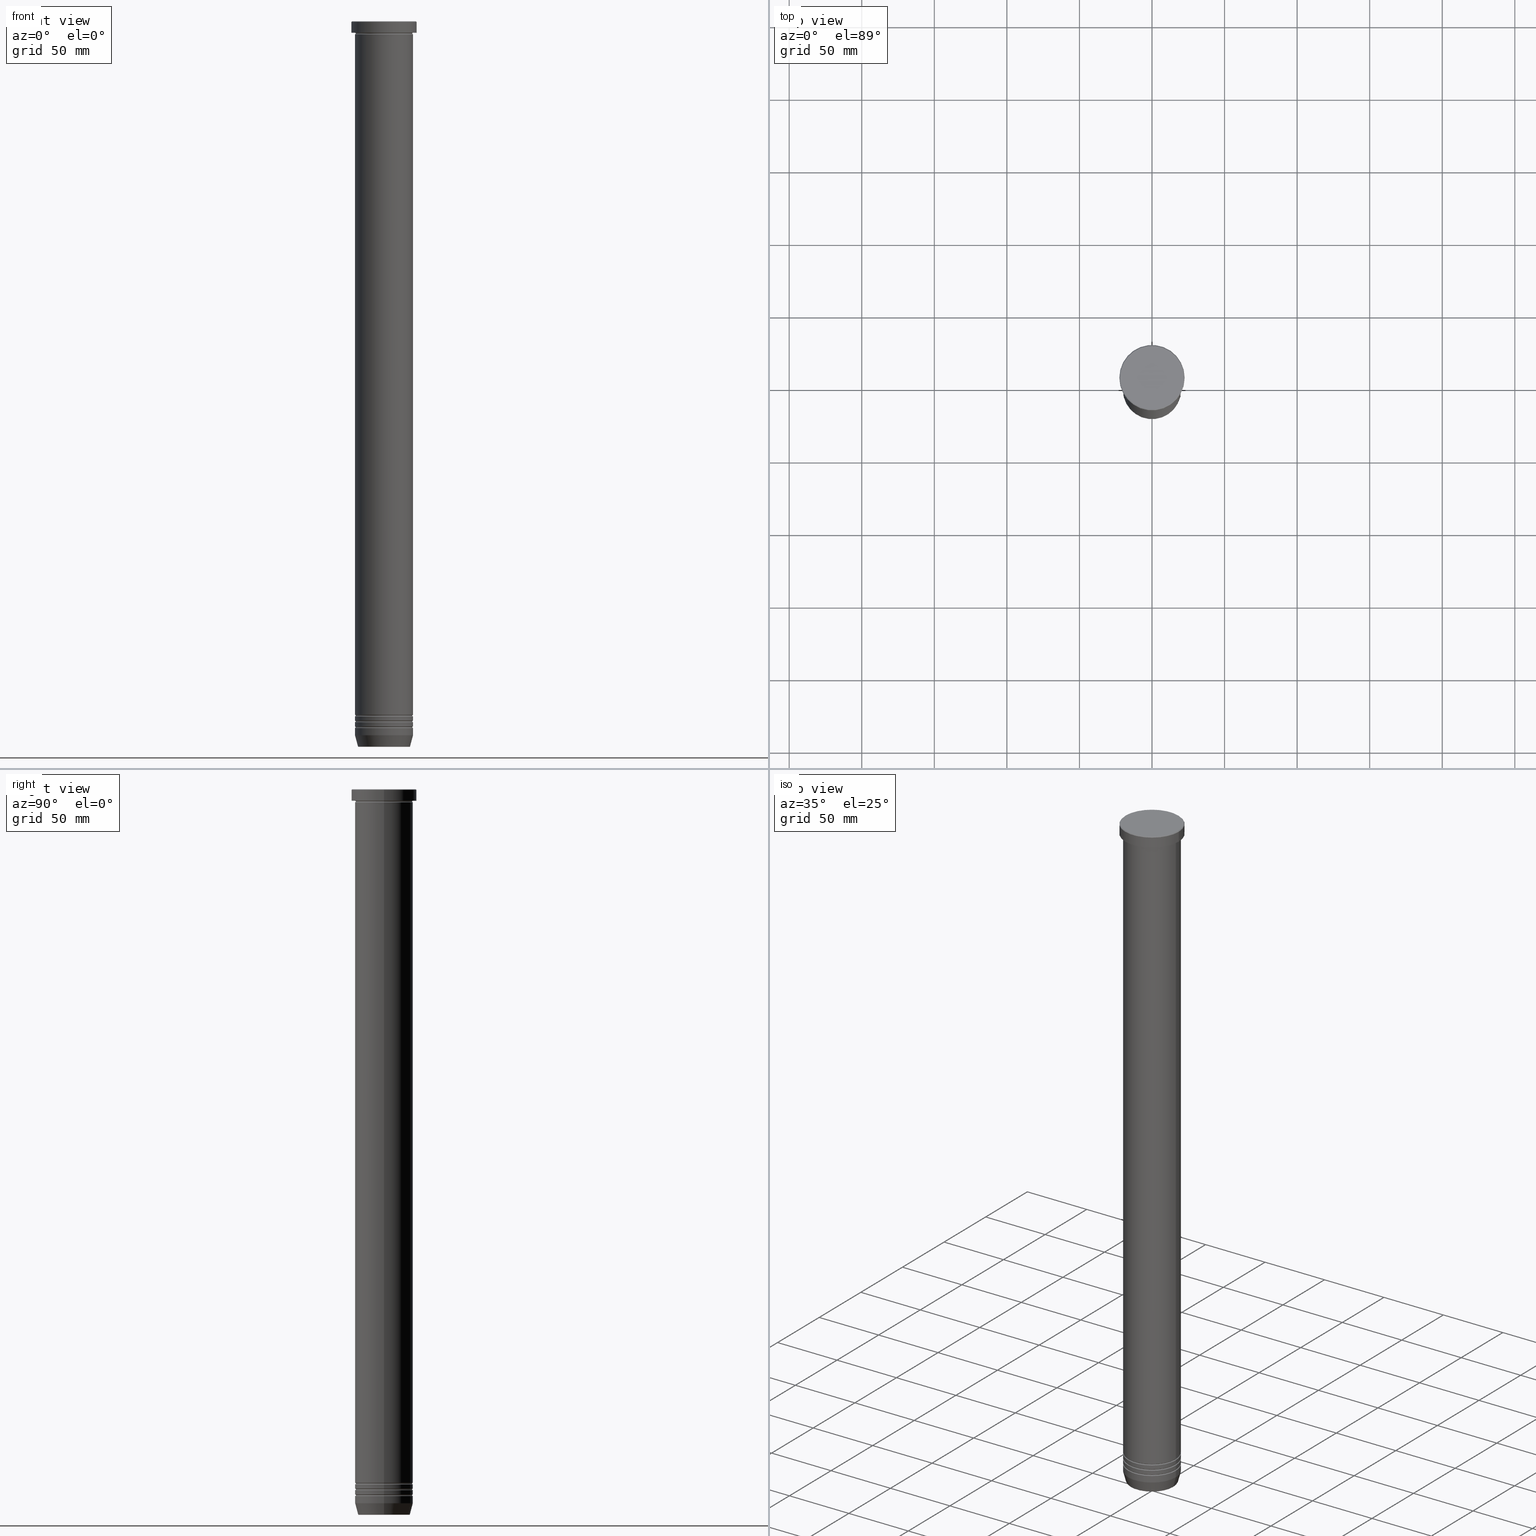
[diagram: canonical four-view strip — front | top / right | iso, engineering-drawing reading convention]
A machine part, canonical four-view strip (front | top / right | iso — engineering-drawing reading convention). The complete STEP part file that produces these views, byte-faithful:
ISO-10303-21;
HEADER;
FILE_DESCRIPTION (( 'STEP AP203' ),
    '1' );
FILE_NAME ('3a2e.STEP',
    '2024-01-02T17:06:51',
    ( '' ),
    ( '' ),
    'SwSTEP 2.0',
    'SolidWorks 2019',
    '' );
FILE_SCHEMA (( 'CONFIG_CONTROL_DESIGN' ));
ENDSEC;

DATA;
#1 = ADVANCED_FACE ( 'NONE', ( #67 ), #289, .F. ) ;
#2 = AXIS2_PLACEMENT_3D ( 'NONE', #133, #860, #634 ) ;
#3 = AXIS2_PLACEMENT_3D ( 'NONE', #980, #254, #651 ) ;
#4 = APPROVAL_PERSON_ORGANIZATION ( #326, #931, #229 ) ;
#5 = DIRECTION ( 'NONE',  ( -1.000000000000000000, -1.224646799147349509E-16, 0.000000000000000000 ) ) ;
#6 = SECURITY_CLASSIFICATION_LEVEL ( 'unclassified' ) ;
#7 = ORIENTED_EDGE ( 'NONE', *, *, #994, .T. ) ;
#8 = FACE_OUTER_BOUND ( 'NONE', #287, .T. ) ;
#9 = CARTESIAN_POINT ( 'NONE',  ( 0.000000000000000000, 0.000000000000000000, 0.000000000000000000 ) ) ;
#10 = ORIENTED_EDGE ( 'NONE', *, *, #1059, .T. ) ;
#11 = ORIENTED_EDGE ( 'NONE', *, *, #430, .F. ) ;
#12 = DIRECTION ( 'NONE',  ( -1.000000000000000000, 0.000000000000000000, 0.000000000000000000 ) ) ;
#13 = ADVANCED_FACE ( 'NONE', ( #884 ), #821, .F. ) ;
#14 = PRODUCT_DEFINITION_SHAPE ( 'NONE', 'NONE',  #1010 ) ;
#15 = FACE_OUTER_BOUND ( 'NONE', #294, .T. ) ;
#16 = ORIENTED_EDGE ( 'NONE', *, *, #994, .F. ) ;
#17 = CONICAL_SURFACE ( 'NONE', #399, 17.85640646055099623, 0.2617993877991502405 ) ;
#18 = AXIS2_PLACEMENT_3D ( 'NONE', #846, #356, #181 ) ;
#19 = FACE_OUTER_BOUND ( 'NONE', #428, .T. ) ;
#20 = VECTOR ( 'NONE', #669, 1000.000000000000000 ) ;
#21 = DIRECTION ( 'NONE',  ( -1.000000000000000000, 0.000000000000000000, 0.000000000000000000 ) ) ;
#22 = ORIENTED_EDGE ( 'NONE', *, *, #398, .F. ) ;
#23 = CIRCLE ( 'NONE', #911, 22.50000000000000000 ) ;
#24 = FACE_OUTER_BOUND ( 'NONE', #804, .T. ) ;
#25 = CARTESIAN_POINT ( 'NONE',  ( 19.99999999999999645, 2.449293598294706119E-15, -478.5000000000001137 ) ) ;
#26 = ORIENTED_EDGE ( 'NONE', *, *, #636, .F. ) ;
#27 = ADVANCED_FACE ( 'NONE', ( #566 ), #700, .F. ) ;
#28 = DIRECTION ( 'NONE',  ( 0.000000000000000000, -0.000000000000000000, 1.000000000000000000 ) ) ;
#29 = CARTESIAN_POINT ( 'NONE',  ( 0.000000000000000000, 0.000000000000000000, -482.0000000000001137 ) ) ;
#30 = EDGE_LOOP ( 'NONE', ( #983, #42, #247, #544 ) ) ;
#31 = EDGE_CURVE ( 'NONE', #204, #1046, #433, .T. ) ;
#32 = CARTESIAN_POINT ( 'NONE',  ( 0.000000000000000000, 0.000000000000000000, 0.000000000000000000 ) ) ;
#33 = AXIS2_PLACEMENT_3D ( 'NONE', #55, #1042, #721 ) ;
#34 = CARTESIAN_POINT ( 'NONE',  ( -20.00000000000000000, 0.000000000000000000, -8.000000000000000000 ) ) ;
#35 = AXIS2_PLACEMENT_3D ( 'NONE', #858, #1009, #129 ) ;
#36 = CIRCLE ( 'NONE', #3, 20.00000000000000000 ) ;
#37 = AXIS2_PLACEMENT_3D ( 'NONE', #631, #118, #847 ) ;
#38 = ORIENTED_EDGE ( 'NONE', *, *, #855, .T. ) ;
#39 = LINE ( 'NONE', #224, #672 ) ;
#40 = FACE_OUTER_BOUND ( 'NONE', #355, .T. ) ;
#41 = EDGE_CURVE ( 'NONE', #572, #731, #248, .T. ) ;
#42 = ORIENTED_EDGE ( 'NONE', *, *, #774, .T. ) ;
#43 = CARTESIAN_POINT ( 'NONE',  ( 22.50000000000000000, 0.000000000000000000, 0.000000000000000000 ) ) ;
#44 =( NAMED_UNIT ( * ) PLANE_ANGLE_UNIT ( ) SI_UNIT ( $, .RADIAN. ) );
#45 = CC_DESIGN_PERSON_AND_ORGANIZATION_ASSIGNMENT ( #876, #570, ( #1010 ) ) ;
#46 = ORIENTED_EDGE ( 'NONE', *, *, #411, .T. ) ;
#47 = ORIENTED_EDGE ( 'NONE', *, *, #205, .T. ) ;
#48 = ORIENTED_EDGE ( 'NONE', *, *, #286, .T. ) ;
#49 = CARTESIAN_POINT ( 'NONE',  ( 0.000000000000000000, 0.000000000000000000, -478.5000000000001137 ) ) ;
#50 = VECTOR ( 'NONE', #484, 1000.000000000000000 ) ;
#51 = VERTEX_POINT ( 'NONE', #864 ) ;
#52 = CIRCLE ( 'NONE', #684, 19.50000000000000000 ) ;
#53 = CIRCLE ( 'NONE', #361, 0.5000000000000004441 ) ;
#54 = ORIENTED_EDGE ( 'NONE', *, *, #281, .T. ) ;
#55 = CARTESIAN_POINT ( 'NONE',  ( 0.000000000000000000, 0.000000000000000000, -482.5000000000001137 ) ) ;
#56 = AXIS2_PLACEMENT_3D ( 'NONE', #934, #364, #299 ) ;
#57 = CARTESIAN_POINT ( 'NONE',  ( 20.00000000000000000, 0.000000000000000000, -483.0000000000001137 ) ) ;
#58 = DIRECTION ( 'NONE',  ( -0.000000000000000000, -0.000000000000000000, 1.000000000000000000 ) ) ;
#59 = DIRECTION ( 'NONE',  ( 1.000000000000000000, 0.000000000000000000, 0.000000000000000000 ) ) ;
#60 = CARTESIAN_POINT ( 'NONE',  ( 0.000000000000000000, 0.000000000000000000, 0.000000000000000000 ) ) ;
#61 = ADVANCED_FACE ( 'NONE', ( #877 ), #17, .T. ) ;
#62 = ORIENTED_EDGE ( 'NONE', *, *, #82, .F. ) ;
#63 = LINE ( 'NONE', #812, #854 ) ;
#64 = EDGE_CURVE ( 'NONE', #166, #904, #157, .T. ) ;
#65 = DIRECTION ( 'NONE',  ( 1.000000000000000000, 0.000000000000000000, 0.000000000000000000 ) ) ;
#66 = CARTESIAN_POINT ( 'NONE',  ( 0.000000000000000000, 0.000000000000000000, -486.0000000000001137 ) ) ;
#67 = FACE_OUTER_BOUND ( 'NONE', #192, .T. ) ;
#68 = EDGE_CURVE ( 'NONE', #866, #731, #464, .T. ) ;
#69 = APPROVAL_DATE_TIME ( #718, #814 ) ;
#70 = CARTESIAN_POINT ( 'NONE',  ( 21.99999999999997868, 2.724839128102859413E-15, 0.000000000000000000 ) ) ;
#71 = PERSON_AND_ORGANIZATION_ROLE ( 'classification_officer' ) ;
#72 = ORIENTED_EDGE ( 'NONE', *, *, #261, .T. ) ;
#73 = CIRCLE ( 'NONE', #922, 19.49999999999999645 ) ;
#74 = DIRECTION ( 'NONE',  ( 1.000000000000000000, 0.000000000000000000, 0.000000000000000000 ) ) ;
#75 = AXIS2_PLACEMENT_3D ( 'NONE', #775, #58, #623 ) ;
#76 = ORIENTED_EDGE ( 'NONE', *, *, #512, .T. ) ;
#77 = AXIS2_PLACEMENT_3D ( 'NONE', #9, #523, #602 ) ;
#78 = CARTESIAN_POINT ( 'NONE',  ( 0.000000000000000000, 0.000000000000000000, -482.5000000000001137 ) ) ;
#79 = DIRECTION ( 'NONE',  ( -0.000000000000000000, -0.000000000000000000, 1.000000000000000000 ) ) ;
#80 = ADVANCED_FACE ( 'NONE', ( #222 ), #88, .F. ) ;
#81 = VERTEX_POINT ( 'NONE', #550 ) ;
#82 = EDGE_CURVE ( 'NONE', #716, #151, #838, .T. ) ;
#83 = FACE_OUTER_BOUND ( 'NONE', #343, .T. ) ;
#84 = ADVANCED_FACE ( 'NONE', ( #295 ), #176, .F. ) ;
#85 = ORIENTED_EDGE ( 'NONE', *, *, #68, .F. ) ;
#86 = CARTESIAN_POINT ( 'NONE',  ( -19.49999999999999645, 2.418677428316022331E-15, -482.5000000000001137 ) ) ;
#87 = APPROVAL_STATUS ( 'not_yet_approved' ) ;
#88 = TOROIDAL_SURFACE ( 'NONE', #905, 19.99999999999999645, 0.5000000000000000000 ) ;
#89 = AXIS2_PLACEMENT_3D ( 'NONE', #925, #429, #276 ) ;
#90 = ORIENTED_EDGE ( 'NONE', *, *, #824, .F. ) ;
#91 = AXIS2_PLACEMENT_3D ( 'NONE', #571, #565, #320 ) ;
#92 = AXIS2_PLACEMENT_3D ( 'NONE', #543, #538, #1003 ) ;
#93 = CARTESIAN_POINT ( 'NONE',  ( 19.99999999999999645, 0.000000000000000000, -478.5000000000001137 ) ) ;
#94 = CARTESIAN_POINT ( 'NONE',  ( 0.000000000000000000, 0.000000000000000000, -479.0000000000001137 ) ) ;
#95 = ORIENTED_EDGE ( 'NONE', *, *, #373, .F. ) ;
#96 = EDGE_LOOP ( 'NONE', ( #374, #507, #685, #22 ) ) ;
#97 = ADVANCED_FACE ( 'NONE', ( #301 ), #789, .T. ) ;
#98 = DIRECTION ( 'NONE',  ( 1.000000000000000000, 0.000000000000000000, 0.000000000000000000 ) ) ;
#99 = CARTESIAN_POINT ( 'NONE',  ( 0.000000000000000000, 0.000000000000000000, -500.0000000000001137 ) ) ;
#100 = EDGE_LOOP ( 'NONE', ( #351, #657, #943, #621 ) ) ;
#101 = ORIENTED_EDGE ( 'NONE', *, *, #221, .T. ) ;
#102 = EDGE_CURVE ( 'NONE', #750, #238, #304, .T. ) ;
#103 = ADVANCED_FACE ( 'NONE', ( #637 ), #587, .F. ) ;
#104 = DIRECTION ( 'NONE',  ( 1.000000000000000000, 0.000000000000000000, 0.000000000000000000 ) ) ;
#105 = DIRECTION ( 'NONE',  ( -0.000000000000000000, -0.000000000000000000, 1.000000000000000000 ) ) ;
#106 = ORIENTED_EDGE ( 'NONE', *, *, #114, .T. ) ;
#107 = CIRCLE ( 'NONE', #972, 21.99999999999997868 ) ;
#108 = DIRECTION ( 'NONE',  ( -0.000000000000000000, -0.000000000000000000, 1.000000000000000000 ) ) ;
#109 = AXIS2_PLACEMENT_3D ( 'NONE', #168, #172, #736 ) ;
#110 = PLANE ( 'NONE',  #165 ) ;
#111 = ORIENTED_EDGE ( 'NONE', *, *, #897, .F. ) ;
#112 = CIRCLE ( 'NONE', #92, 20.00000000000000000 ) ;
#113 = EDGE_CURVE ( 'NONE', #454, #81, #788, .T. ) ;
#114 = EDGE_CURVE ( 'NONE', #588, #765, #241, .T. ) ;
#115 = PLANE ( 'NONE',  #1043 ) ;
#116 = DIRECTION ( 'NONE',  ( -0.000000000000000000, -1.000000000000000000, -0.000000000000000000 ) ) ;
#117 = DIRECTION ( 'NONE',  ( 1.000000000000000000, 0.000000000000000000, 0.000000000000000000 ) ) ;
#118 = DIRECTION ( 'NONE',  ( 0.000000000000000000, -1.000000000000000000, 0.000000000000000000 ) ) ;
#119 = ORIENTED_EDGE ( 'NONE', *, *, #533, .F. ) ;
#120 = ORIENTED_EDGE ( 'NONE', *, *, #762, .T. ) ;
#121 = DIRECTION ( 'NONE',  ( -0.000000000000000000, -0.000000000000000000, 1.000000000000000000 ) ) ;
#122 = CARTESIAN_POINT ( 'NONE',  ( 0.000000000000000000, 0.000000000000000000, -478.5000000000001137 ) ) ;
#123 = CONICAL_SURFACE ( 'NONE', #872, 21.99999999999997868, 0.7853981633974344012 ) ;
#124 = AXIS2_PLACEMENT_3D ( 'NONE', #548, #386, #117 ) ;
#125 = AXIS2_PLACEMENT_3D ( 'NONE', #948, #683, #220 ) ;
#126 = EDGE_LOOP ( 'NONE', ( #503, #427, #38, #743 ) ) ;
#127 = EDGE_LOOP ( 'NONE', ( #1028, #696, #46, #869 ) ) ;
#128 = ADVANCED_FACE ( 'NONE', ( #463 ), #389, .T. ) ;
#129 = DIRECTION ( 'NONE',  ( 1.000000000000000000, 0.000000000000000000, 0.000000000000000000 ) ) ;
#130 = DIRECTION ( 'NONE',  ( -0.000000000000000000, -0.000000000000000000, 1.000000000000000000 ) ) ;
#131 = EDGE_LOOP ( 'NONE', ( #955, #7, #834, #540 ) ) ;
#132 = VERTEX_POINT ( 'NONE', #472 ) ;
#133 = CARTESIAN_POINT ( 'NONE',  ( 19.99999999999999645, 0.000000000000000000, -486.5000000000001137 ) ) ;
#134 = ORIENTED_EDGE ( 'NONE', *, *, #1039, .T. ) ;
#135 = DIRECTION ( 'NONE',  ( -0.000000000000000000, -0.000000000000000000, 1.000000000000000000 ) ) ;
#136 = FACE_OUTER_BOUND ( 'NONE', #390, .T. ) ;
#137 = DIRECTION ( 'NONE',  ( 1.000000000000000000, 0.000000000000000000, 0.000000000000000000 ) ) ;
#138 = AXIS2_PLACEMENT_3D ( 'NONE', #60, #702, #810 ) ;
#139 = VERTEX_POINT ( 'NONE', #722 ) ;
#140 = CIRCLE ( 'NONE', #952, 20.00000000000000000 ) ;
#141 = ADVANCED_FACE ( 'NONE', ( #949 ), #953, .T. ) ;
#142 = AXIS2_PLACEMENT_3D ( 'NONE', #662, #893, #1051 ) ;
#143 = PRODUCT_DEFINITION_FORMATION_WITH_SPECIFIED_SOURCE ( 'LIBOVOLN�', '', #352, .NOT_KNOWN. ) ;
#144 = DIRECTION ( 'NONE',  ( 1.000000000000000000, 0.000000000000000000, 0.000000000000000000 ) ) ;
#145 = CARTESIAN_POINT ( 'NONE',  ( 0.000000000000000000, 0.000000000000000000, -478.5000000000001137 ) ) ;
#146 = ADVANCED_FACE ( 'NONE', ( #1035 ), #233, .T. ) ;
#147 = DATE_AND_TIME ( #555, #197 ) ;
#148 = CARTESIAN_POINT ( 'NONE',  ( 0.000000000000000000, 0.000000000000000000, -478.5000000000001137 ) ) ;
#149 = EDGE_CURVE ( 'NONE', #859, #799, #870, .T. ) ;
#150 = DIRECTION ( 'NONE',  ( 1.000000000000000000, 0.000000000000000000, 0.000000000000000000 ) ) ;
#151 = VERTEX_POINT ( 'NONE', #633 ) ;
#152 = CARTESIAN_POINT ( 'NONE',  ( 19.99999999999999645, 2.449293598294706119E-15, -482.5000000000001137 ) ) ;
#153 = PERSON_AND_ORGANIZATION_ROLE ( 'creator' ) ;
#154 = DIRECTION ( 'NONE',  ( -1.000000000000000000, -1.224646799147349509E-16, 0.000000000000000000 ) ) ;
#155 = DATE_TIME_ROLE ( 'classification_date' ) ;
#156 = VERTEX_POINT ( 'NONE', #710 ) ;
#157 = LINE ( 'NONE', #471, #575 ) ;
#158 = UNCERTAINTY_MEASURE_WITH_UNIT (LENGTH_MEASURE( 1.000000000000000082E-05 ), #456, 'distance_accuracy_value', 'NONE');
#159 = DIRECTION ( 'NONE',  ( -0.7071067811865376918, 0.000000000000000000, -0.7071067811865574537 ) ) ;
#160 = ORIENTED_EDGE ( 'NONE', *, *, #82, .T. ) ;
#161 = CARTESIAN_POINT ( 'NONE',  ( -17.47274296656151904, 2.139793874632398805E-15, -499.5000000000001137 ) ) ;
#162 = EDGE_CURVE ( 'NONE', #754, #663, #226, .T. ) ;
#163 = CARTESIAN_POINT ( 'NONE',  ( -19.99999999999999645, 2.449293598294706119E-15, 0.000000000000000000 ) ) ;
#164 = AXIS2_PLACEMENT_3D ( 'NONE', #733, #375, #385 ) ;
#165 = AXIS2_PLACEMENT_3D ( 'NONE', #514, #342, #350 ) ;
#166 = VERTEX_POINT ( 'NONE', #798 ) ;
#167 = PRODUCT_RELATED_PRODUCT_CATEGORY ( 'detail', '', ( #352 ) ) ;
#168 = CARTESIAN_POINT ( 'NONE',  ( 0.000000000000000000, 0.000000000000000000, -499.5000000000001137 ) ) ;
#169 = VERTEX_POINT ( 'NONE', #561 ) ;
#170 = DIRECTION ( 'NONE',  ( 1.000000000000000000, 0.000000000000000000, 0.000000000000000000 ) ) ;
#171 = SHAPE_DEFINITION_REPRESENTATION ( #14, #371 ) ;
#172 = DIRECTION ( 'NONE',  ( -0.000000000000000000, -0.000000000000000000, 1.000000000000000000 ) ) ;
#173 = DIRECTION ( 'NONE',  ( 0.000000000000000000, 0.000000000000000000, -1.000000000000000000 ) ) ;
#174 = EDGE_LOOP ( 'NONE', ( #987, #279, #493, #90 ) ) ;
#175 = ADVANCED_FACE ( 'NONE', ( #878 ), #123, .T. ) ;
#176 = TOROIDAL_SURFACE ( 'NONE', #1041, 19.99999999999999645, 0.5000000000000000000 ) ;
#177 = VECTOR ( 'NONE', #121, 1000.000000000000000 ) ;
#178 = ORIENTED_EDGE ( 'NONE', *, *, #478, .F. ) ;
#179 = CIRCLE ( 'NONE', #124, 19.49999999999999645 ) ;
#180 = CIRCLE ( 'NONE', #773, 22.50000000000000000 ) ;
#181 = DIRECTION ( 'NONE',  ( 1.000000000000000000, 0.000000000000000000, 0.000000000000000000 ) ) ;
#182 = DIRECTION ( 'NONE',  ( 1.000000000000000000, 0.000000000000000000, 0.000000000000000000 ) ) ;
#183 = VERTEX_POINT ( 'NONE', #57 ) ;
#184 = EDGE_CURVE ( 'NONE', #883, #716, #434, .T. ) ;
#185 = ORIENTED_EDGE ( 'NONE', *, *, #384, .F. ) ;
#186 = DIRECTION ( 'NONE',  ( 0.000000000000000000, 0.000000000000000000, -1.000000000000000000 ) ) ;
#187 = DIRECTION ( 'NONE',  ( 1.000000000000000000, 0.000000000000000000, 0.000000000000000000 ) ) ;
#188 = ORIENTED_EDGE ( 'NONE', *, *, #457, .T. ) ;
#189 = EDGE_CURVE ( 'NONE', #883, #183, #346, .T. ) ;
#190 = DIRECTION ( 'NONE',  ( -0.000000000000000000, -0.000000000000000000, 1.000000000000000000 ) ) ;
#191 = DIRECTION ( 'NONE',  ( 1.000000000000000000, 0.000000000000000000, 0.000000000000000000 ) ) ;
#192 = EDGE_LOOP ( 'NONE', ( #358, #896, #445, #579 ) ) ;
#193 = AXIS2_PLACEMENT_3D ( 'NONE', #513, #917, #98 ) ;
#194 = CIRCLE ( 'NONE', #435, 0.5000000000000004441 ) ;
#195 = CARTESIAN_POINT ( 'NONE',  ( -22.50000000000000000, 2.755455298081544778E-15, -7.999999999999998224 ) ) ;
#196 = ADVANCED_FACE ( 'NONE', ( #477, #136 ), #296, .T. ) ;
#197 = LOCAL_TIME ( 18, 6, 51.00000000000000000, #643 ) ;
#198 = CARTESIAN_POINT ( 'NONE',  ( 0.000000000000000000, 0.000000000000000000, -486.5000000000001137 ) ) ;
#199 = DIRECTION ( 'NONE',  ( -0.000000000000000000, -0.000000000000000000, 1.000000000000000000 ) ) ;
#200 = CARTESIAN_POINT ( 'NONE',  ( -19.99999999999999645, 0.000000000000000000, -486.5000000000001137 ) ) ;
#201 = ORIENTED_EDGE ( 'NONE', *, *, #286, .F. ) ;
#202 = FACE_OUTER_BOUND ( 'NONE', #174, .T. ) ;
#203 = DIRECTION ( 'NONE',  ( 1.224646799147353207E-16, 1.000000000000000000, 0.000000000000000000 ) ) ;
#204 = VERTEX_POINT ( 'NONE', #1055 ) ;
#205 = EDGE_CURVE ( 'NONE', #365, #765, #323, .T. ) ;
#206 = DIRECTION ( 'NONE',  ( 0.000000000000000000, 0.000000000000000000, -1.000000000000000000 ) ) ;
#207 = AXIS2_PLACEMENT_3D ( 'NONE', #403, #231, #871 ) ;
#208 = FACE_OUTER_BOUND ( 'NONE', #496, .T. ) ;
#209 = TOROIDAL_SURFACE ( 'NONE', #701, 19.99999999999999645, 0.5000000000000000000 ) ;
#210 = AXIS2_PLACEMENT_3D ( 'NONE', #333, #410, #170 ) ;
#211 = AXIS2_PLACEMENT_3D ( 'NONE', #826, #767, #752 ) ;
#212 = VERTEX_POINT ( 'NONE', #302 ) ;
#213 = ORIENTED_EDGE ( 'NONE', *, *, #829, .T. ) ;
#214 = ORIENTED_EDGE ( 'NONE', *, *, #862, .T. ) ;
#215 = DIRECTION ( 'NONE',  ( 1.000000000000000000, 0.000000000000000000, 0.000000000000000000 ) ) ;
#216 = ORIENTED_EDGE ( 'NONE', *, *, #360, .F. ) ;
#217 = DIRECTION ( 'NONE',  ( 1.000000000000000000, 0.000000000000000000, 0.000000000000000000 ) ) ;
#218 = CARTESIAN_POINT ( 'NONE',  ( 0.000000000000000000, 0.000000000000000000, 0.000000000000000000 ) ) ;
#219 = DIRECTION ( 'NONE',  ( -0.000000000000000000, -0.000000000000000000, 1.000000000000000000 ) ) ;
#220 = DIRECTION ( 'NONE',  ( 1.000000000000000000, 0.000000000000000000, 0.000000000000000000 ) ) ;
#221 = EDGE_CURVE ( 'NONE', #765, #453, #534, .T. ) ;
#222 = FACE_OUTER_BOUND ( 'NONE', #997, .T. ) ;
#223 = DIRECTION ( 'NONE',  ( 0.000000000000000000, 0.000000000000000000, -1.000000000000000000 ) ) ;
#224 = CARTESIAN_POINT ( 'NONE',  ( -20.00000000000000000, 2.449293598294706513E-15, 0.000000000000000000 ) ) ;
#225 = MECHANICAL_CONTEXT ( 'NONE', #833, 'mechanical' ) ;
#226 = CIRCLE ( 'NONE', #906, 20.00000000000000000 ) ;
#227 = EDGE_CURVE ( 'NONE', #166, #366, #262, .T. ) ;
#228 = AXIS2_PLACEMENT_3D ( 'NONE', #353, #108, #264 ) ;
#229 = APPROVAL_ROLE ( '' ) ;
#230 = CIRCLE ( 'NONE', #1005, 17.95570587970606624 ) ;
#231 = DIRECTION ( 'NONE',  ( 1.224646799147353207E-16, 1.000000000000000000, 0.000000000000000000 ) ) ;
#232 = AXIS2_PLACEMENT_3D ( 'NONE', #265, #748, #431 ) ;
#233 = CYLINDRICAL_SURFACE ( 'NONE', #1002, 20.00000000000000000 ) ;
#234 = VERTEX_POINT ( 'NONE', #763 ) ;
#235 = APPLICATION_CONTEXT ( 'configuration controlled 3d designs of mechanical parts and assemblies' ) ;
#236 = CARTESIAN_POINT ( 'NONE',  ( 0.000000000000000000, 0.000000000000000000, 0.000000000000000000 ) ) ;
#237 = PERSON_AND_ORGANIZATION ( #1050, #557 ) ;
#238 = VERTEX_POINT ( 'NONE', #593 ) ;
#239 = DIRECTION ( 'NONE',  ( 1.000000000000000000, 0.000000000000000000, 0.000000000000000000 ) ) ;
#240 = ADVANCED_FACE ( 'NONE', ( #24 ), #378, .F. ) ;
#241 = LINE ( 'NONE', #567, #619 ) ;
#242 = ORIENTED_EDGE ( 'NONE', *, *, #849, .T. ) ;
#243 = CARTESIAN_POINT ( 'NONE',  ( -17.95570587970606624, 2.324116685748020582E-15, -499.6294095225513843 ) ) ;
#244 = DIRECTION ( 'NONE',  ( 1.000000000000000000, 0.000000000000000000, 0.000000000000000000 ) ) ;
#245 = LINE ( 'NONE', #163, #402 ) ;
#246 = CC_DESIGN_PERSON_AND_ORGANIZATION_ASSIGNMENT ( #1053, #71, ( #924 ) ) ;
#247 = ORIENTED_EDGE ( 'NONE', *, *, #862, .F. ) ;
#248 = CIRCLE ( 'NONE', #207, 0.5000000000000004441 ) ;
#249 = VECTOR ( 'NONE', #219, 1000.000000000000000 ) ;
#250 = CONICAL_SURFACE ( 'NONE', #210, 17.85640646055099623, 0.2617993877991502405 ) ;
#251 = VERTEX_POINT ( 'NONE', #597 ) ;
#252 = APPROVAL_PERSON_ORGANIZATION ( #1038, #681, #1049 ) ;
#253 = DIRECTION ( 'NONE',  ( 0.000000000000000000, 0.000000000000000000, -1.000000000000000000 ) ) ;
#254 = DIRECTION ( 'NONE',  ( -0.000000000000000000, -0.000000000000000000, 1.000000000000000000 ) ) ;
#255 = ADVANCED_FACE ( 'NONE', ( #19 ), #682, .T. ) ;
#256 = DIRECTION ( 'NONE',  ( -1.000000000000000000, 1.224646799147349509E-16, 0.000000000000000000 ) ) ;
#257 = ORIENTED_EDGE ( 'NONE', *, *, #666, .F. ) ;
#258 = DIRECTION ( 'NONE',  ( -0.000000000000000000, -0.000000000000000000, 1.000000000000000000 ) ) ;
#259 = DIRECTION ( 'NONE',  ( 1.000000000000000000, 0.000000000000000000, 0.000000000000000000 ) ) ;
#260 = ORIENTED_EDGE ( 'NONE', *, *, #786, .F. ) ;
#261 = EDGE_CURVE ( 'NONE', #454, #51, #52, .T. ) ;
#262 = CIRCLE ( 'NONE', #519, 20.00000000000000000 ) ;
#263 = AXIS2_PLACEMENT_3D ( 'NONE', #78, #805, #391 ) ;
#264 = DIRECTION ( 'NONE',  ( 1.000000000000000000, 0.000000000000000000, 0.000000000000000000 ) ) ;
#265 = CARTESIAN_POINT ( 'NONE',  ( 0.000000000000000000, 0.000000000000000000, -482.5000000000001137 ) ) ;
#266 = ORIENTED_EDGE ( 'NONE', *, *, #1022, .F. ) ;
#267 = EDGE_CURVE ( 'NONE', #904, #81, #759, .T. ) ;
#268 = CARTESIAN_POINT ( 'NONE',  ( 0.000000000000000000, 0.000000000000000000, 0.000000000000000000 ) ) ;
#269 = CARTESIAN_POINT ( 'NONE',  ( 19.99999999999999645, 0.000000000000000000, 0.000000000000000000 ) ) ;
#270 = ORIENTED_EDGE ( 'NONE', *, *, #778, .F. ) ;
#271 = EDGE_CURVE ( 'NONE', #454, #1046, #740, .T. ) ;
#272 = DIRECTION ( 'NONE',  ( 1.000000000000000000, 0.000000000000000000, 0.000000000000000000 ) ) ;
#273 = FACE_OUTER_BOUND ( 'NONE', #439, .T. ) ;
#274 = CIRCLE ( 'NONE', #228, 19.99999999999999289 ) ;
#275 = CIRCLE ( 'NONE', #874, 0.5000000000000004441 ) ;
#276 = DIRECTION ( 'NONE',  ( 1.000000000000000000, 0.000000000000000000, 0.000000000000000000 ) ) ;
#277 = CC_DESIGN_APPROVAL ( #931, ( #924 ) ) ;
#278 = DIRECTION ( 'NONE',  ( -0.000000000000000000, -0.000000000000000000, 1.000000000000000000 ) ) ;
#279 = ORIENTED_EDGE ( 'NONE', *, *, #478, .T. ) ;
#280 = LINE ( 'NONE', #611, #604 ) ;
#281 = EDGE_CURVE ( 'NONE', #799, #859, #274, .T. ) ;
#282 = ORIENTED_EDGE ( 'NONE', *, *, #487, .T. ) ;
#283 = ADVANCED_FACE ( 'NONE', ( #755 ), #678, .T. ) ;
#284 = CARTESIAN_POINT ( 'NONE',  ( 19.99999999999999645, 0.000000000000000000, 0.000000000000000000 ) ) ;
#285 = DIRECTION ( 'NONE',  ( 1.000000000000000000, 0.000000000000000000, 0.000000000000000000 ) ) ;
#286 = EDGE_CURVE ( 'NONE', #234, #151, #1004, .T. ) ;
#287 = EDGE_LOOP ( 'NONE', ( #531, #214, #242, #1033 ) ) ;
#288 = CARTESIAN_POINT ( 'NONE',  ( 0.000000000000000000, 0.000000000000000000, -100.0000000000000000 ) ) ;
#289 = TOROIDAL_SURFACE ( 'NONE', #769, 20.00000000000000000, 0.5000000000000000000 ) ;
#290 = DIRECTION ( 'NONE',  ( -0.000000000000000000, -0.000000000000000000, 1.000000000000000000 ) ) ;
#291 = CIRCLE ( 'NONE', #193, 20.00000000000000000 ) ;
#292 = AXIS2_PLACEMENT_3D ( 'NONE', #145, #480, #1037 ) ;
#293 = APPROVAL_PERSON_ORGANIZATION ( #966, #814, #1032 ) ;
#294 = EDGE_LOOP ( 'NONE', ( #837, #968 ) ) ;
#295 = FACE_OUTER_BOUND ( 'NONE', #613, .T. ) ;
#296 = PLANE ( 'NONE',  #936 ) ;
#297 = EDGE_CURVE ( 'NONE', #51, #454, #554, .T. ) ;
#298 = CARTESIAN_POINT ( 'NONE',  ( -19.99999999999999645, 2.449293598294706119E-15, 0.000000000000000000 ) ) ;
#299 = DIRECTION ( 'NONE',  ( 1.000000000000000000, 0.000000000000000000, 0.000000000000000000 ) ) ;
#300 = ADVANCED_FACE ( 'NONE', ( #607 ), #525, .T. ) ;
#301 = FACE_OUTER_BOUND ( 'NONE', #986, .T. ) ;
#302 = CARTESIAN_POINT ( 'NONE',  ( 20.00000000000000000, 0.000000000000000000, -487.0000000000001137 ) ) ;
#303 = CARTESIAN_POINT ( 'NONE',  ( -19.50000000000000000, 2.418677428316022726E-15, -8.500000000000000000 ) ) ;
#304 = LINE ( 'NONE', #809, #50 ) ;
#305 = DIRECTION ( 'NONE',  ( 1.000000000000000000, 0.000000000000000000, 0.000000000000000000 ) ) ;
#306 = ORIENTED_EDGE ( 'NONE', *, *, #41, .T. ) ;
#307 = FACE_OUTER_BOUND ( 'NONE', #626, .T. ) ;
#308 = DATE_AND_TIME ( #801, #875 ) ;
#309 = AXIS2_PLACEMENT_3D ( 'NONE', #388, #393, #314 ) ;
#310 = CYLINDRICAL_SURFACE ( 'NONE', #379, 20.00000000000000000 ) ;
#311 = AXIS2_PLACEMENT_3D ( 'NONE', #32, #784, #929 ) ;
#312 = ORIENTED_EDGE ( 'NONE', *, *, #608, .T. ) ;
#313 = AXIS2_PLACEMENT_3D ( 'NONE', #236, #407, #474 ) ;
#314 = DIRECTION ( 'NONE',  ( -1.000000000000000000, 0.000000000000000000, 0.000000000000000000 ) ) ;
#315 = AXIS2_PLACEMENT_3D ( 'NONE', #444, #290, #768 ) ;
#316 = DIRECTION ( 'NONE',  ( -0.000000000000000000, -1.000000000000000000, -0.000000000000000000 ) ) ;
#317 = EDGE_LOOP ( 'NONE', ( #708, #928, #1056, #260 ) ) ;
#318 = DIRECTION ( 'NONE',  ( -0.000000000000000000, -0.000000000000000000, 1.000000000000000000 ) ) ;
#319 = APPROVAL_STATUS ( 'not_yet_approved' ) ;
#320 = DIRECTION ( 'NONE',  ( 1.000000000000000000, 0.000000000000000000, 0.000000000000000000 ) ) ;
#321 = EDGE_CURVE ( 'NONE', #676, #588, #107, .T. ) ;
#322 = DIRECTION ( 'NONE',  ( 1.000000000000000000, 0.000000000000000000, 0.000000000000000000 ) ) ;
#323 = LINE ( 'NONE', #1025, #790 ) ;
#324 = EDGE_LOOP ( 'NONE', ( #134, #1007, #257, #412 ) ) ;
#325 = FACE_OUTER_BOUND ( 'NONE', #992, .T. ) ;
#326 = PERSON_AND_ORGANIZATION ( #1050, #557 ) ;
#327 = EDGE_LOOP ( 'NONE', ( #827, #787, #76, #771 ) ) ;
#328 = CARTESIAN_POINT ( 'NONE',  ( 0.000000000000000000, 0.000000000000000000, 0.000000000000000000 ) ) ;
#329 = AXIS2_PLACEMENT_3D ( 'NONE', #989, #437, #272 ) ;
#330 = AXIS2_PLACEMENT_3D ( 'NONE', #900, #719, #489 ) ;
#331 = CIRCLE ( 'NONE', #956, 20.00000000000000000 ) ;
#332 = ADVANCED_FACE ( 'NONE', ( #8 ), #209, .F. ) ;
#333 = CARTESIAN_POINT ( 'NONE',  ( 0.000000000000000000, 0.000000000000000000, -500.0000000000001137 ) ) ;
#334 = ORIENTED_EDGE ( 'NONE', *, *, #1052, .F. ) ;
#335 = ORIENTED_EDGE ( 'NONE', *, *, #373, .T. ) ;
#336 = CC_DESIGN_PERSON_AND_ORGANIZATION_ASSIGNMENT ( #481, #650, ( #143 ) ) ;
#337 = DIRECTION ( 'NONE',  ( 0.000000000000000000, 0.000000000000000000, -1.000000000000000000 ) ) ;
#338 = LINE ( 'NONE', #269, #20 ) ;
#339 = ORIENTED_EDGE ( 'NONE', *, *, #1052, .T. ) ;
#340 = ORIENTED_EDGE ( 'NONE', *, *, #345, .T. ) ;
#341 = DIRECTION ( 'NONE',  ( -0.000000000000000000, -0.000000000000000000, 1.000000000000000000 ) ) ;
#342 = DIRECTION ( 'NONE',  ( 0.000000000000000000, 0.000000000000000000, -1.000000000000000000 ) ) ;
#343 = EDGE_LOOP ( 'NONE', ( #432, #470 ) ) ;
#344 = EDGE_LOOP ( 'NONE', ( #185, #339, #818, #201 ) ) ;
#345 = EDGE_CURVE ( 'NONE', #183, #883, #291, .T. ) ;
#346 = CIRCLE ( 'NONE', #164, 20.00000000000000000 ) ;
#347 = AXIS2_PLACEMENT_3D ( 'NONE', #438, #354, #259 ) ;
#348 = TOROIDAL_SURFACE ( 'NONE', #404, 19.99999999999999645, 0.5000000000000000000 ) ;
#349 = DIRECTION ( 'NONE',  ( -0.000000000000000000, -1.000000000000000000, -0.000000000000000000 ) ) ;
#350 = DIRECTION ( 'NONE',  ( -1.000000000000000000, 0.000000000000000000, -0.000000000000000000 ) ) ;
#351 = ORIENTED_EDGE ( 'NONE', *, *, #524, .F. ) ;
#352 = PRODUCT ( '3a2e', '3a2e', '', ( #225 ) ) ;
#353 = CARTESIAN_POINT ( 'NONE',  ( 0.000000000000000000, 0.000000000000000000, -486.0000000000001137 ) ) ;
#354 = DIRECTION ( 'NONE',  ( -0.000000000000000000, -0.000000000000000000, 1.000000000000000000 ) ) ;
#355 = EDGE_LOOP ( 'NONE', ( #720, #734, #629, #724 ) ) ;
#356 = DIRECTION ( 'NONE',  ( -0.000000000000000000, -0.000000000000000000, 1.000000000000000000 ) ) ;
#357 = CARTESIAN_POINT ( 'NONE',  ( -19.99999999999999645, 2.449293598294706119E-15, -486.5000000000001137 ) ) ;
#358 = ORIENTED_EDGE ( 'NONE', *, *, #113, .F. ) ;
#359 = CIRCLE ( 'NONE', #2, 0.5000000000000004441 ) ;
#360 = EDGE_CURVE ( 'NONE', #453, #765, #822, .T. ) ;
#361 = AXIS2_PLACEMENT_3D ( 'NONE', #400, #413, #5 ) ;
#362 = DIRECTION ( 'NONE',  ( 0.2588190451025214611, 0.000000000000000000, 0.9659258262890679791 ) ) ;
#363 = CONICAL_SURFACE ( 'NONE', #77, 21.99999999999997868, 0.7853981633974344012 ) ;
#364 = DIRECTION ( 'NONE',  ( -0.000000000000000000, -0.000000000000000000, 1.000000000000000000 ) ) ;
#365 = VERTEX_POINT ( 'NONE', #195 ) ;
#366 = VERTEX_POINT ( 'NONE', #522 ) ;
#367 = DIRECTION ( 'NONE',  ( 1.000000000000000000, 0.000000000000000000, 0.000000000000000000 ) ) ;
#368 = ADVANCED_FACE ( 'NONE', ( #844 ), #115, .F. ) ;
#369 = DIRECTION ( 'NONE',  ( -0.000000000000000000, -0.000000000000000000, 1.000000000000000000 ) ) ;
#370 = EDGE_LOOP ( 'NONE', ( #409, #213 ) ) ;
#371 = ADVANCED_BREP_SHAPE_REPRESENTATION ( '3a2e', ( #894, #899, #761 ), #856 ) ;
#372 = CARTESIAN_POINT ( 'NONE',  ( -19.99999999999999645, 2.449293598294706119E-15, -482.0000000000001137 ) ) ;
#373 = EDGE_CURVE ( 'NONE', #859, #932, #359, .T. ) ;
#374 = ORIENTED_EDGE ( 'NONE', *, *, #41, .F. ) ;
#375 = DIRECTION ( 'NONE',  ( -0.000000000000000000, -0.000000000000000000, 1.000000000000000000 ) ) ;
#376 = EDGE_LOOP ( 'NONE', ( #111, #1020, #335, #422 ) ) ;
#377 = DIRECTION ( 'NONE',  ( 0.000000000000000000, 0.000000000000000000, -1.000000000000000000 ) ) ;
#378 = TOROIDAL_SURFACE ( 'NONE', #892, 19.99999999999999645, 0.5000000000000000000 ) ;
#379 = AXIS2_PLACEMENT_3D ( 'NONE', #328, #79, #807 ) ;
#380 = CIRCLE ( 'NONE', #521, 0.5000000000000004441 ) ;
#381 = CIRCLE ( 'NONE', #37, 0.5000000000000004441 ) ;
#382 = ORIENTED_EDGE ( 'NONE', *, *, #940, .F. ) ;
#383 = CARTESIAN_POINT ( 'NONE',  ( 0.000000000000000000, 0.000000000000000000, -486.5000000000001137 ) ) ;
#384 = EDGE_CURVE ( 'NONE', #462, #234, #466, .T. ) ;
#385 = DIRECTION ( 'NONE',  ( 1.000000000000000000, 0.000000000000000000, 0.000000000000000000 ) ) ;
#386 = DIRECTION ( 'NONE',  ( 0.000000000000000000, 0.000000000000000000, -1.000000000000000000 ) ) ;
#387 = PERSON_AND_ORGANIZATION ( #1050, #557 ) ;
#388 = CARTESIAN_POINT ( 'NONE',  ( 0.000000000000000000, 0.000000000000000000, -482.5000000000001137 ) ) ;
#389 = CYLINDRICAL_SURFACE ( 'NONE', #138, 20.00000000000000000 ) ;
#390 = EDGE_LOOP ( 'NONE', ( #961, #16 ) ) ;
#391 = DIRECTION ( 'NONE',  ( 1.000000000000000000, 0.000000000000000000, 0.000000000000000000 ) ) ;
#392 = PERSON_AND_ORGANIZATION_ROLE ( 'design_owner' ) ;
#393 = DIRECTION ( 'NONE',  ( 0.000000000000000000, 0.000000000000000000, -1.000000000000000000 ) ) ;
#394 = CARTESIAN_POINT ( 'NONE',  ( 0.000000000000000000, 22.50000000000000000, -8.000000000000000000 ) ) ;
#395 = CARTESIAN_POINT ( 'NONE',  ( 0.000000000000000000, 0.000000000000000000, -8.500000000000000000 ) ) ;
#396 = CARTESIAN_POINT ( 'NONE',  ( 0.000000000000000000, 0.000000000000000000, -8.500000000000000000 ) ) ;
#397 = APPLICATION_PROTOCOL_DEFINITION ( 'international standard', 'config_control_design', 1994, #235 ) ;
#398 = EDGE_CURVE ( 'NONE', #731, #866, #73, .T. ) ;
#399 = AXIS2_PLACEMENT_3D ( 'NONE', #652, #546, #65 ) ;
#400 = CARTESIAN_POINT ( 'NONE',  ( 20.00000000000000000, 2.449293598294706513E-15, -8.500000000000000000 ) ) ;
#401 = AXIS2_PLACEMENT_3D ( 'NONE', #697, #1031, #1017 ) ;
#402 = VECTOR ( 'NONE', #595, 1000.000000000000000 ) ;
#403 = CARTESIAN_POINT ( 'NONE',  ( -19.99999999999999645, 2.449293598294706119E-15, -478.5000000000001137 ) ) ;
#404 = AXIS2_PLACEMENT_3D ( 'NONE', #122, #452, #776 ) ;
#405 = CARTESIAN_POINT ( 'NONE',  ( -19.99999999999999645, 0.000000000000000000, -482.5000000000001137 ) ) ;
#406 = ORIENTED_EDGE ( 'NONE', *, *, #533, .T. ) ;
#407 = DIRECTION ( 'NONE',  ( -0.000000000000000000, -0.000000000000000000, 1.000000000000000000 ) ) ;
#408 = DIRECTION ( 'NONE',  ( -1.000000000000000000, 0.000000000000000000, -0.000000000000000000 ) ) ;
#409 = ORIENTED_EDGE ( 'NONE', *, *, #499, .T. ) ;
#410 = DIRECTION ( 'NONE',  ( -0.000000000000000000, -0.000000000000000000, 1.000000000000000000 ) ) ;
#411 = EDGE_CURVE ( 'NONE', #132, #670, #280, .T. ) ;
#412 = ORIENTED_EDGE ( 'NONE', *, *, #102, .F. ) ;
#413 = DIRECTION ( 'NONE',  ( -1.224646799147353207E-16, 1.000000000000000000, 0.000000000000000000 ) ) ;
#414 = COORDINATED_UNIVERSAL_TIME_OFFSET ( 1, 0, .AHEAD. ) ;
#415 = AXIS2_PLACEMENT_3D ( 'NONE', #998, #258, #440 ) ;
#416 = AXIS2_PLACEMENT_3D ( 'NONE', #29, #105, #182 ) ;
#417 = EDGE_CURVE ( 'NONE', #366, #166, #140, .T. ) ;
#418 = CC_DESIGN_SECURITY_CLASSIFICATION ( #924, ( #143 ) ) ;
#419 = EDGE_LOOP ( 'NONE', ( #695, #610, #266, #11 ) ) ;
#420 = DIRECTION ( 'NONE',  ( -0.000000000000000000, -0.000000000000000000, 1.000000000000000000 ) ) ;
#421 = DIRECTION ( 'NONE',  ( -0.000000000000000000, -0.000000000000000000, 1.000000000000000000 ) ) ;
#422 = ORIENTED_EDGE ( 'NONE', *, *, #424, .F. ) ;
#423 = ORIENTED_EDGE ( 'NONE', *, *, #1015, .T. ) ;
#424 = EDGE_CURVE ( 'NONE', #915, #932, #504, .T. ) ;
#425 = DIRECTION ( 'NONE',  ( -0.000000000000000000, -0.000000000000000000, 1.000000000000000000 ) ) ;
#426 = FACE_OUTER_BOUND ( 'NONE', #376, .T. ) ;
#427 = ORIENTED_EDGE ( 'NONE', *, *, #612, .T. ) ;
#428 = EDGE_LOOP ( 'NONE', ( #937, #188, #691, #757 ) ) ;
#429 = DIRECTION ( 'NONE',  ( -0.000000000000000000, -0.000000000000000000, 1.000000000000000000 ) ) ;
#430 = EDGE_CURVE ( 'NONE', #670, #212, #1026, .T. ) ;
#431 = DIRECTION ( 'NONE',  ( -1.000000000000000000, 0.000000000000000000, 0.000000000000000000 ) ) ;
#432 = ORIENTED_EDGE ( 'NONE', *, *, #666, .T. ) ;
#433 = CIRCLE ( 'NONE', #1019, 20.00000000000000000 ) ;
#434 = CIRCLE ( 'NONE', #770, 0.5000000000000004441 ) ;
#435 = AXIS2_PLACEMENT_3D ( 'NONE', #93, #655, #728 ) ;
#436 = LOCAL_TIME ( 18, 6, 51.00000000000000000, #564 ) ;
#437 = DIRECTION ( 'NONE',  ( 0.000000000000000000, 0.000000000000000000, -1.000000000000000000 ) ) ;
#438 = CARTESIAN_POINT ( 'NONE',  ( 0.000000000000000000, 0.000000000000000000, -100.0000000000000000 ) ) ;
#439 = EDGE_LOOP ( 'NONE', ( #382, #510, #106, #216 ) ) ;
#440 = DIRECTION ( 'NONE',  ( 1.000000000000000000, 0.000000000000000000, 0.000000000000000000 ) ) ;
#441 = DIRECTION ( 'NONE',  ( -1.000000000000000000, 0.000000000000000000, 0.000000000000000000 ) ) ;
#442 = ADVANCED_FACE ( 'NONE', ( #712 ), #692, .T. ) ;
#443 = FACE_OUTER_BOUND ( 'NONE', #344, .T. ) ;
#444 = CARTESIAN_POINT ( 'NONE',  ( 0.000000000000000000, 0.000000000000000000, -492.0000000000000568 ) ) ;
#445 = ORIENTED_EDGE ( 'NONE', *, *, #942, .T. ) ;
#446 = AXIS2_PLACEMENT_3D ( 'NONE', #1034, #969, #962 ) ;
#447 = ADVANCED_FACE ( 'NONE', ( #202 ), #529, .T. ) ;
#448 = AXIS2_PLACEMENT_3D ( 'NONE', #794, #850, #367 ) ;
#449 = AXIS2_PLACEMENT_3D ( 'NONE', #396, #957, #563 ) ;
#450 = LINE ( 'NONE', #43, #589 ) ;
#451 = AXIS2_PLACEMENT_3D ( 'NONE', #198, #509, #845 ) ;
#452 = DIRECTION ( 'NONE',  ( 0.000000000000000000, 0.000000000000000000, -1.000000000000000000 ) ) ;
#453 = VERTEX_POINT ( 'NONE', #455 ) ;
#454 = VERTEX_POINT ( 'NONE', #303 ) ;
#455 = CARTESIAN_POINT ( 'NONE',  ( 22.50000000000000000, 0.000000000000000000, -0.5000000000000350830 ) ) ;
#456 =( LENGTH_UNIT ( ) NAMED_UNIT ( * ) SI_UNIT ( .MILLI., .METRE. ) );
#457 = EDGE_CURVE ( 'NONE', #799, #883, #950, .T. ) ;
#458 = ORIENTED_EDGE ( 'NONE', *, *, #974, .T. ) ;
#459 = DIRECTION ( 'NONE',  ( -0.000000000000000000, -0.000000000000000000, 1.000000000000000000 ) ) ;
#460 = CYLINDRICAL_SURFACE ( 'NONE', #1024, 22.50000000000000000 ) ;
#461 = EDGE_CURVE ( 'NONE', #156, #453, #450, .T. ) ;
#462 = VERTEX_POINT ( 'NONE', #372 ) ;
#463 = FACE_OUTER_BOUND ( 'NONE', #100, .T. ) ;
#464 = CIRCLE ( 'NONE', #502, 19.49999999999999645 ) ;
#465 = CARTESIAN_POINT ( 'NONE',  ( 20.00000000000000000, 0.000000000000000000, 0.000000000000000000 ) ) ;
#466 = CIRCLE ( 'NONE', #620, 19.99999999999999645 ) ;
#467 = CARTESIAN_POINT ( 'NONE',  ( 21.99999999999997868, 2.694222958124174048E-15, 0.000000000000000000 ) ) ;
#468 = TOROIDAL_SURFACE ( 'NONE', #330, 17.47274296656151904, 0.5000000000000000000 ) ;
#469 = LOCAL_TIME ( 18, 6, 51.00000000000000000, #498 ) ;
#470 = ORIENTED_EDGE ( 'NONE', *, *, #824, .T. ) ;
#471 = CARTESIAN_POINT ( 'NONE',  ( 20.00000000000000000, 0.000000000000000000, 0.000000000000000000 ) ) ;
#472 = CARTESIAN_POINT ( 'NONE',  ( 17.95570587970606624, 0.000000000000000000, -499.6294095225513843 ) ) ;
#473 = ORIENTED_EDGE ( 'NONE', *, *, #457, .F. ) ;
#474 = DIRECTION ( 'NONE',  ( 1.000000000000000000, 0.000000000000000000, 0.000000000000000000 ) ) ;
#475 = CALENDAR_DATE ( 2024, 2, 1 ) ;
#476 = DIRECTION ( 'NONE',  ( -0.000000000000000000, -0.000000000000000000, 1.000000000000000000 ) ) ;
#477 = FACE_BOUND ( 'NONE', #887, .T. ) ;
#478 = EDGE_CURVE ( 'NONE', #572, #750, #852, .T. ) ;
#479 = ORIENTED_EDGE ( 'NONE', *, *, #321, .F. ) ;
#480 = DIRECTION ( 'NONE',  ( -0.000000000000000000, -0.000000000000000000, 1.000000000000000000 ) ) ;
#481 = PERSON_AND_ORGANIZATION ( #1050, #557 ) ;
#482 = CARTESIAN_POINT ( 'NONE',  ( 19.99999999999999289, 0.000000000000000000, -478.0000000000001137 ) ) ;
#483 = DATE_AND_TIME ( #808, #744 ) ;
#484 = DIRECTION ( 'NONE',  ( -0.000000000000000000, -0.000000000000000000, 1.000000000000000000 ) ) ;
#485 = DIRECTION ( 'NONE',  ( -1.000000000000000000, 1.224646799147349509E-16, 0.000000000000000000 ) ) ;
#486 = DIRECTION ( 'NONE',  ( -0.000000000000000000, -0.000000000000000000, 1.000000000000000000 ) ) ;
#487 = EDGE_CURVE ( 'NONE', #132, #617, #813, .T. ) ;
#488 = DIRECTION ( 'NONE',  ( 1.224646799147353207E-16, 1.000000000000000000, 0.000000000000000000 ) ) ;
#489 = DIRECTION ( 'NONE',  ( 1.000000000000000000, 0.000000000000000000, 0.000000000000000000 ) ) ;
#490 = AXIS2_PLACEMENT_3D ( 'NONE', #1001, #341, #751 ) ;
#491 = AXIS2_PLACEMENT_3D ( 'NONE', #99, #914, #191 ) ;
#492 = AXIS2_PLACEMENT_3D ( 'NONE', #25, #679, #909 ) ;
#493 = ORIENTED_EDGE ( 'NONE', *, *, #102, .T. ) ;
#494 = CARTESIAN_POINT ( 'NONE',  ( -20.00000000000000000, 2.449293598294706513E-15, -479.0000000000001137 ) ) ;
#495 = EDGE_CURVE ( 'NONE', #366, #81, #39, .T. ) ;
#496 = EDGE_LOOP ( 'NONE', ( #423, #47, #101, #749 ) ) ;
#497 = CARTESIAN_POINT ( 'NONE',  ( 0.000000000000000000, 6.938893903907228378E-15, -100.0000000000000000 ) ) ;
#498 = COORDINATED_UNIVERSAL_TIME_OFFSET ( 1, 0, .AHEAD. ) ;
#499 = EDGE_CURVE ( 'NONE', #777, #139, #772, .T. ) ;
#500 = CARTESIAN_POINT ( 'NONE',  ( 20.00000000000000000, 0.000000000000000000, -479.0000000000001137 ) ) ;
#501 = CARTESIAN_POINT ( 'NONE',  ( -19.99999999999999289, 2.449293598294705724E-15, -486.0000000000001137 ) ) ;
#502 = AXIS2_PLACEMENT_3D ( 'NONE', #148, #627, #322 ) ;
#503 = ORIENTED_EDGE ( 'NONE', *, *, #189, .T. ) ;
#504 = CIRCLE ( 'NONE', #35, 19.49999999999999645 ) ;
#505 = CIRCLE ( 'NONE', #556, 0.5000000000000004441 ) ;
#506 = VECTOR ( 'NONE', #530, 999.9999999999998863 ) ;
#507 = ORIENTED_EDGE ( 'NONE', *, *, #1039, .F. ) ;
#508 = DIRECTION ( 'NONE',  ( 0.000000000000000000, -1.000000000000000000, 0.000000000000000000 ) ) ;
#509 = DIRECTION ( 'NONE',  ( -0.000000000000000000, -0.000000000000000000, 1.000000000000000000 ) ) ;
#510 = ORIENTED_EDGE ( 'NONE', *, *, #1059, .F. ) ;
#511 = ORIENTED_EDGE ( 'NONE', *, *, #820, .F. ) ;
#512 = EDGE_CURVE ( 'NONE', #234, #663, #542, .T. ) ;
#513 = CARTESIAN_POINT ( 'NONE',  ( 0.000000000000000000, 0.000000000000000000, -483.0000000000001137 ) ) ;
#514 = CARTESIAN_POINT ( 'NONE',  ( 0.000000000000000000, 20.00000000000000000, -100.0000000000000000 ) ) ;
#515 = ORIENTED_EDGE ( 'NONE', *, *, #694, .F. ) ;
#516 = CARTESIAN_POINT ( 'NONE',  ( 19.99999999999999645, 0.000000000000000000, -482.5000000000001137 ) ) ;
#517 = EDGE_LOOP ( 'NONE', ( #654, #528, #853, #680 ) ) ;
#518 = AXIS2_PLACEMENT_3D ( 'NONE', #632, #797, #239 ) ;
#519 = AXIS2_PLACEMENT_3D ( 'NONE', #665, #199, #104 ) ;
#520 = AXIS2_PLACEMENT_3D ( 'NONE', #152, #1048, #965 ) ;
#521 = AXIS2_PLACEMENT_3D ( 'NONE', #549, #203, #1027 ) ;
#522 = CARTESIAN_POINT ( 'NONE',  ( -20.00000000000000000, 2.449293598294706513E-15, -100.0000000000000000 ) ) ;
#523 = DIRECTION ( 'NONE',  ( 0.000000000000000000, 0.000000000000000000, -1.000000000000000000 ) ) ;
#524 = EDGE_CURVE ( 'NONE', #251, #169, #933, .T. ) ;
#525 = CYLINDRICAL_SURFACE ( 'NONE', #576, 19.99999999999999645 ) ;
#526 = DIRECTION ( 'NONE',  ( 1.000000000000000000, 0.000000000000000000, 0.000000000000000000 ) ) ;
#527 = CC_DESIGN_PERSON_AND_ORGANIZATION_ASSIGNMENT ( #237, #153, ( #143 ) ) ;
#528 = ORIENTED_EDGE ( 'NONE', *, *, #495, .T. ) ;
#529 = CYLINDRICAL_SURFACE ( 'NONE', #448, 19.99999999999999645 ) ;
#530 = DIRECTION ( 'NONE',  ( 0.7071067811865376918, 8.659560562354813296E-17, -0.7071067811865574537 ) ) ;
#531 = ORIENTED_EDGE ( 'NONE', *, *, #886, .F. ) ;
#532 = CLOSED_SHELL ( 'NONE', ( #175, #594, #103, #758, #960, #781, #141, #730, #196, #442, #1, #711, #916 ) ) ;
#533 = EDGE_CURVE ( 'NONE', #932, #915, #179, .T. ) ;
#534 = CIRCLE ( 'NONE', #840, 22.50000000000000000 ) ;
#535 = AXIS2_PLACEMENT_3D ( 'NONE', #901, #583, #173 ) ;
#536 = CARTESIAN_POINT ( 'NONE',  ( 0.000000000000000000, 0.000000000000000000, -482.0000000000001137 ) ) ;
#537 = AXIS2_PLACEMENT_3D ( 'NONE', #357, #836, #256 ) ;
#538 = DIRECTION ( 'NONE',  ( -0.000000000000000000, -0.000000000000000000, 1.000000000000000000 ) ) ;
#539 = ORIENTED_EDGE ( 'NONE', *, *, #424, .T. ) ;
#540 = ORIENTED_EDGE ( 'NONE', *, *, #360, .T. ) ;
#541 = ADVANCED_FACE ( 'NONE', ( #443 ), #825, .F. ) ;
#542 = LINE ( 'NONE', #284, #975 ) ;
#543 = CARTESIAN_POINT ( 'NONE',  ( 0.000000000000000000, 0.000000000000000000, -9.000000000000001776 ) ) ;
#544 = ORIENTED_EDGE ( 'NONE', *, *, #512, .F. ) ;
#545 = ORIENTED_EDGE ( 'NONE', *, *, #1022, .T. ) ;
#546 = DIRECTION ( 'NONE',  ( -0.000000000000000000, -0.000000000000000000, 1.000000000000000000 ) ) ;
#547 = DIRECTION ( 'NONE',  ( 0.000000000000000000, 0.000000000000000000, -1.000000000000000000 ) ) ;
#548 = CARTESIAN_POINT ( 'NONE',  ( 0.000000000000000000, 0.000000000000000000, -486.5000000000001137 ) ) ;
#549 = CARTESIAN_POINT ( 'NONE',  ( -19.99999999999999645, 2.449293598294706119E-15, -482.5000000000001137 ) ) ;
#550 = CARTESIAN_POINT ( 'NONE',  ( -20.00000000000000000, 2.449293598294706513E-15, -9.000000000000001776 ) ) ;
#551 = DIRECTION ( 'NONE',  ( 1.000000000000000000, 0.000000000000000000, 0.000000000000000000 ) ) ;
#552 = AXIS2_PLACEMENT_3D ( 'NONE', #66, #639, #144 ) ;
#553 = DIRECTION ( 'NONE',  ( -0.000000000000000000, -0.000000000000000000, 1.000000000000000000 ) ) ;
#554 = CIRCLE ( 'NONE', #89, 19.50000000000000000 ) ;
#555 = CALENDAR_DATE ( 2024, 2, 1 ) ;
#556 = AXIS2_PLACEMENT_3D ( 'NONE', #161, #488, #725 ) ;
#557 = ORGANIZATION ( 'NEUR�EN�', 'NEUR�EN�', '' ) ;
#558 = ORIENTED_EDGE ( 'NONE', *, *, #974, .F. ) ;
#559 = EDGE_CURVE ( 'NONE', #169, #212, #954, .T. ) ;
#560 = CARTESIAN_POINT ( 'NONE',  ( 0.000000000000000000, 0.000000000000000000, -8.500000000000000000 ) ) ;
#561 = CARTESIAN_POINT ( 'NONE',  ( -20.00000000000000000, 2.449293598294706513E-15, -487.0000000000001137 ) ) ;
#562 = ORIENTED_EDGE ( 'NONE', *, *, #271, .F. ) ;
#563 = DIRECTION ( 'NONE',  ( -1.000000000000000000, 0.000000000000000000, 0.000000000000000000 ) ) ;
#564 = COORDINATED_UNIVERSAL_TIME_OFFSET ( 1, 0, .AHEAD. ) ;
#565 = DIRECTION ( 'NONE',  ( -0.000000000000000000, -0.000000000000000000, 1.000000000000000000 ) ) ;
#566 = FACE_OUTER_BOUND ( 'NONE', #126, .T. ) ;
#567 = CARTESIAN_POINT ( 'NONE',  ( -21.99999999999997868, 0.000000000000000000, 0.000000000000000000 ) ) ;
#568 = EDGE_LOOP ( 'NONE', ( #664, #745, #738, #1060 ) ) ;
#569 = CARTESIAN_POINT ( 'NONE',  ( -19.99999999999999289, 2.449293598294705724E-15, -478.0000000000001137 ) ) ;
#570 = PERSON_AND_ORGANIZATION_ROLE ( 'creator' ) ;
#571 = CARTESIAN_POINT ( 'NONE',  ( 0.000000000000000000, 0.000000000000000000, 0.000000000000000000 ) ) ;
#572 = VERTEX_POINT ( 'NONE', #569 ) ;
#573 = ORIENTED_EDGE ( 'NONE', *, *, #495, .F. ) ;
#574 = ADVANCED_FACE ( 'NONE', ( #888 ), #908, .F. ) ;
#575 = VECTOR ( 'NONE', #709, 1000.000000000000000 ) ;
#576 = AXIS2_PLACEMENT_3D ( 'NONE', #601, #425, #995 ) ;
#577 = CARTESIAN_POINT ( 'NONE',  ( 0.000000000000000000, 0.000000000000000000, -486.5000000000001137 ) ) ;
#578 = AXIS2_PLACEMENT_3D ( 'NONE', #735, #318, #717 ) ;
#579 = ORIENTED_EDGE ( 'NONE', *, *, #267, .T. ) ;
#580 = FACE_OUTER_BOUND ( 'NONE', #699, .T. ) ;
#581 = DATE_AND_TIME ( #819, #469 ) ;
#582 = FACE_OUTER_BOUND ( 'NONE', #131, .T. ) ;
#583 = DIRECTION ( 'NONE',  ( 0.000000000000000000, -1.000000000000000000, 0.000000000000000000 ) ) ;
#584 = VERTEX_POINT ( 'NONE', #880 ) ;
#585 = CARTESIAN_POINT ( 'NONE',  ( 0.000000000000000000, 0.000000000000000000, -8.500000000000000000 ) ) ;
#586 = CARTESIAN_POINT ( 'NONE',  ( -19.99999999999999645, 0.000000000000000000, -478.5000000000001137 ) ) ;
#587 = TOROIDAL_SURFACE ( 'NONE', #658, 20.00000000000000000, 0.5000000000000000000 ) ;
#588 = VERTEX_POINT ( 'NONE', #649 ) ;
#589 = VECTOR ( 'NONE', #867, 1000.000000000000000 ) ;
#590 = ADVANCED_FACE ( 'NONE', ( #800 ), #1057, .T. ) ;
#591 = AXIS2_PLACEMENT_3D ( 'NONE', #630, #377, #215 ) ;
#592 = ORIENTED_EDGE ( 'NONE', *, *, #184, .T. ) ;
#593 = CARTESIAN_POINT ( 'NONE',  ( 20.00000000000000000, 0.000000000000000000, -100.0000000000000000 ) ) ;
#594 = ADVANCED_FACE ( 'NONE', ( #307 ), #923, .F. ) ;
#595 = DIRECTION ( 'NONE',  ( -0.000000000000000000, -0.000000000000000000, 1.000000000000000000 ) ) ;
#596 = EDGE_LOOP ( 'NONE', ( #573, #946, #816, #935 ) ) ;
#597 = CARTESIAN_POINT ( 'NONE',  ( -20.00000000000000000, 2.449293598294706513E-15, -492.0000000000000568 ) ) ;
#598 = FACE_OUTER_BOUND ( 'NONE', #796, .T. ) ;
#599 = ORIENTED_EDGE ( 'NONE', *, *, #271, .T. ) ;
#600 = EDGE_CURVE ( 'NONE', #139, #617, #505, .T. ) ;
#601 = CARTESIAN_POINT ( 'NONE',  ( 0.000000000000000000, 0.000000000000000000, 0.000000000000000000 ) ) ;
#602 = DIRECTION ( 'NONE',  ( -1.000000000000000000, 0.000000000000000000, 0.000000000000000000 ) ) ;
#603 = AXIS2_PLACEMENT_3D ( 'NONE', #218, #945, #305 ) ;
#604 = VECTOR ( 'NONE', #362, 1000.000000000000114 ) ;
#605 = CIRCLE ( 'NONE', #520, 0.5000000000000004441 ) ;
#606 = TOROIDAL_SURFACE ( 'NONE', #451, 19.99999999999999645, 0.5000000000000000000 ) ;
#607 = FACE_OUTER_BOUND ( 'NONE', #327, .T. ) ;
#608 = EDGE_CURVE ( 'NONE', #617, #251, #63, .T. ) ;
#609 = CARTESIAN_POINT ( 'NONE',  ( 0.000000000000000000, 0.000000000000000000, -7.999999999999998224 ) ) ;
#610 = ORIENTED_EDGE ( 'NONE', *, *, #524, .T. ) ;
#611 = CARTESIAN_POINT ( 'NONE',  ( 17.85640646055099623, 0.000000000000000000, -500.0000000000001137 ) ) ;
#612 = EDGE_CURVE ( 'NONE', #183, #151, #605, .T. ) ;
#613 = EDGE_LOOP ( 'NONE', ( #982, #1011, #119, #95 ) ) ;
#614 = DIRECTION ( 'NONE',  ( 1.000000000000000000, 0.000000000000000000, 0.000000000000000000 ) ) ;
#615 = DIRECTION ( 'NONE',  ( -0.000000000000000000, -0.000000000000000000, 1.000000000000000000 ) ) ;
#616 = ORIENTED_EDGE ( 'NONE', *, *, #297, .T. ) ;
#617 = VERTEX_POINT ( 'NONE', #243 ) ;
#618 = CC_DESIGN_DATE_AND_TIME_ASSIGNMENT ( #147, #806, ( #1010 ) ) ;
#619 = VECTOR ( 'NONE', #159, 999.9999999999998863 ) ;
#620 = AXIS2_PLACEMENT_3D ( 'NONE', #536, #553, #688 ) ;
#621 = ORIENTED_EDGE ( 'NONE', *, *, #559, .F. ) ;
#622 = CIRCLE ( 'NONE', #704, 0.5000000000000004441 ) ;
#623 = DIRECTION ( 'NONE',  ( -1.000000000000000000, 0.000000000000000000, 0.000000000000000000 ) ) ;
#624 = CIRCLE ( 'NONE', #125, 20.00000000000000000 ) ;
#625 = LINE ( 'NONE', #467, #506 ) ;
#626 = EDGE_LOOP ( 'NONE', ( #72, #753, #782, #562 ) ) ;
#627 = DIRECTION ( 'NONE',  ( 0.000000000000000000, 0.000000000000000000, -1.000000000000000000 ) ) ;
#628 = DIRECTION ( 'NONE',  ( -0.000000000000000000, -0.000000000000000000, 1.000000000000000000 ) ) ;
#629 = ORIENTED_EDGE ( 'NONE', *, *, #68, .T. ) ;
#630 = CARTESIAN_POINT ( 'NONE',  ( 0.000000000000000000, 0.000000000000000000, -500.0000000000001137 ) ) ;
#631 = CARTESIAN_POINT ( 'NONE',  ( 20.00000000000000000, 0.000000000000000000, -8.500000000000000000 ) ) ;
#632 = CARTESIAN_POINT ( 'NONE',  ( 0.000000000000000000, 0.000000000000000000, 0.000000000000000000 ) ) ;
#633 = CARTESIAN_POINT ( 'NONE',  ( 19.49999999999999645, 0.000000000000000000, -482.5000000000001137 ) ) ;
#634 = DIRECTION ( 'NONE',  ( 0.000000000000000000, 0.000000000000000000, -1.000000000000000000 ) ) ;
#635 = CARTESIAN_POINT ( 'NONE',  ( 0.000000000000000000, 0.000000000000000000, 0.000000000000000000 ) ) ;
#636 = EDGE_CURVE ( 'NONE', #51, #204, #53, .T. ) ;
#637 = FACE_OUTER_BOUND ( 'NONE', #568, .T. ) ;
#638 = DESIGN_CONTEXT ( 'detailed design', #235, 'design' ) ;
#639 = DIRECTION ( 'NONE',  ( -0.000000000000000000, -0.000000000000000000, 1.000000000000000000 ) ) ;
#640 = ORIENTED_EDGE ( 'NONE', *, *, #31, .T. ) ;
#641 = DIRECTION ( 'NONE',  ( -0.2588190451025214611, 3.169619151431774186E-17, 0.9659258262890679791 ) ) ;
#642 = VECTOR ( 'NONE', #947, 1000.000000000000000 ) ;
#643 = COORDINATED_UNIVERSAL_TIME_OFFSET ( 1, 0, .AHEAD. ) ;
#644 = DIRECTION ( 'NONE',  ( -1.000000000000000000, 0.000000000000000000, 0.000000000000000000 ) ) ;
#645 = ADVANCED_FACE ( 'NONE', ( #817 ), #468, .T. ) ;
#646 = CIRCLE ( 'NONE', #673, 0.5000000000000004441 ) ;
#647 = DIRECTION ( 'NONE',  ( -1.000000000000000000, 0.000000000000000000, 0.000000000000000000 ) ) ;
#648 = DIRECTION ( 'NONE',  ( 0.000000000000000000, 0.000000000000000000, -1.000000000000000000 ) ) ;
#649 = CARTESIAN_POINT ( 'NONE',  ( -21.99999999999997868, 0.000000000000000000, 0.000000000000000000 ) ) ;
#650 = PERSON_AND_ORGANIZATION_ROLE ( 'design_supplier' ) ;
#651 = DIRECTION ( 'NONE',  ( 1.000000000000000000, 0.000000000000000000, 0.000000000000000000 ) ) ;
#652 = CARTESIAN_POINT ( 'NONE',  ( 0.000000000000000000, 0.000000000000000000, -500.0000000000001137 ) ) ;
#653 = ADVANCED_FACE ( 'NONE', ( #83 ), #977, .F. ) ;
#654 = ORIENTED_EDGE ( 'NONE', *, *, #227, .T. ) ;
#655 = DIRECTION ( 'NONE',  ( 0.000000000000000000, -1.000000000000000000, 0.000000000000000000 ) ) ;
#656 = ADVANCED_FACE ( 'NONE', ( #325 ), #661, .T. ) ;
#657 = ORIENTED_EDGE ( 'NONE', *, *, #1000, .T. ) ;
#658 = AXIS2_PLACEMENT_3D ( 'NONE', #560, #476, #1054 ) ;
#659 = AXIS2_PLACEMENT_3D ( 'NONE', #668, #349, #830 ) ;
#660 = CARTESIAN_POINT ( 'NONE',  ( 19.99999999999999645, 2.449293598294706119E-15, -486.5000000000001137 ) ) ;
#661 = TOROIDAL_SURFACE ( 'NONE', #109, 17.47274296656151904, 0.5000000000000000000 ) ;
#662 = CARTESIAN_POINT ( 'NONE',  ( 0.000000000000000000, 0.000000000000000000, -8.500000000000000000 ) ) ;
#663 = VERTEX_POINT ( 'NONE', #500 ) ;
#664 = ORIENTED_EDGE ( 'NONE', *, *, #261, .F. ) ;
#665 = CARTESIAN_POINT ( 'NONE',  ( 0.000000000000000000, 0.000000000000000000, -100.0000000000000000 ) ) ;
#666 = EDGE_CURVE ( 'NONE', #238, #584, #36, .T. ) ;
#667 = ORIENTED_EDGE ( 'NONE', *, *, #786, .T. ) ;
#668 = CARTESIAN_POINT ( 'NONE',  ( -20.00000000000000000, 0.000000000000000000, -8.500000000000000000 ) ) ;
#669 = DIRECTION ( 'NONE',  ( -0.000000000000000000, -0.000000000000000000, 1.000000000000000000 ) ) ;
#670 = VERTEX_POINT ( 'NONE', #882 ) ;
#671 = ADVANCED_FACE ( 'NONE', ( #1058 ), #250, .T. ) ;
#672 = VECTOR ( 'NONE', #941, 1000.000000000000000 ) ;
#673 = AXIS2_PLACEMENT_3D ( 'NONE', #200, #785, #851 ) ;
#674 = DIRECTION ( 'NONE',  ( 1.000000000000000000, 0.000000000000000000, 0.000000000000000000 ) ) ;
#675 = DIRECTION ( 'NONE',  ( -0.000000000000000000, -0.000000000000000000, 1.000000000000000000 ) ) ;
#676 = VERTEX_POINT ( 'NONE', #70 ) ;
#677 = ADVANCED_FACE ( 'NONE', ( #580 ), #703, .F. ) ;
#678 = CYLINDRICAL_SURFACE ( 'NONE', #415, 19.99999999999999645 ) ;
#679 = DIRECTION ( 'NONE',  ( -1.224646799147353207E-16, 1.000000000000000000, 0.000000000000000000 ) ) ;
#680 = ORIENTED_EDGE ( 'NONE', *, *, #64, .F. ) ;
#681 = APPROVAL ( #319, 'NEUR�EN�' ) ;
#682 = CYLINDRICAL_SURFACE ( 'NONE', #490, 19.99999999999999645 ) ;
#683 = DIRECTION ( 'NONE',  ( -0.000000000000000000, -0.000000000000000000, 1.000000000000000000 ) ) ;
#684 = AXIS2_PLACEMENT_3D ( 'NONE', #585, #984, #674 ) ;
#685 = ORIENTED_EDGE ( 'NONE', *, *, #694, .T. ) ;
#686 = CIRCLE ( 'NONE', #535, 0.5000000000000004441 ) ;
#687 = AXIS2_PLACEMENT_3D ( 'NONE', #918, #756, #21 ) ;
#688 = DIRECTION ( 'NONE',  ( 1.000000000000000000, 0.000000000000000000, 0.000000000000000000 ) ) ;
#689 = CARTESIAN_POINT ( 'NONE',  ( 0.000000000000000000, 0.000000000000000000, -7.999999999999998224 ) ) ;
#690 = ORIENTED_EDGE ( 'NONE', *, *, #31, .F. ) ;
#691 = ORIENTED_EDGE ( 'NONE', *, *, #345, .F. ) ;
#692 = CYLINDRICAL_SURFACE ( 'NONE', #311, 20.00000000000000000 ) ;
#693 = DIRECTION ( 'NONE',  ( -0.000000000000000000, -0.000000000000000000, 1.000000000000000000 ) ) ;
#694 = EDGE_CURVE ( 'NONE', #750, #866, #194, .T. ) ;
#695 = ORIENTED_EDGE ( 'NONE', *, *, #746, .T. ) ;
#696 = ORIENTED_EDGE ( 'NONE', *, *, #820, .T. ) ;
#697 = CARTESIAN_POINT ( 'NONE',  ( 0.000000000000000000, 0.000000000000000000, -478.0000000000001137 ) ) ;
#698 =( NAMED_UNIT ( * ) SI_UNIT ( $, .STERADIAN. ) SOLID_ANGLE_UNIT ( ) );
#699 = EDGE_LOOP ( 'NONE', ( #910, #545, #458, #539 ) ) ;
#700 = TOROIDAL_SURFACE ( 'NONE', #309, 19.99999999999999645, 0.5000000000000000000 ) ;
#701 = AXIS2_PLACEMENT_3D ( 'NONE', #920, #186, #12 ) ;
#702 = DIRECTION ( 'NONE',  ( -0.000000000000000000, -0.000000000000000000, 1.000000000000000000 ) ) ;
#703 = TOROIDAL_SURFACE ( 'NONE', #1045, 19.99999999999999645, 0.5000000000000000000 ) ;
#704 = AXIS2_PLACEMENT_3D ( 'NONE', #586, #116, #839 ) ;
#705 = CARTESIAN_POINT ( 'NONE',  ( -20.00000000000000000, 2.449293598294706513E-15, 0.000000000000000000 ) ) ;
#706 = CC_DESIGN_APPROVAL ( #814, ( #1010 ) ) ;
#707 = APPLICATION_PROTOCOL_DEFINITION ( 'international standard', 'config_control_design', 1994, #833 ) ;
#708 = ORIENTED_EDGE ( 'NONE', *, *, #829, .F. ) ;
#709 = DIRECTION ( 'NONE',  ( -0.000000000000000000, -0.000000000000000000, 1.000000000000000000 ) ) ;
#710 = CARTESIAN_POINT ( 'NONE',  ( 22.50000000000000000, 0.000000000000000000, -7.999999999999998224 ) ) ;
#711 = ADVANCED_FACE ( 'NONE', ( #1061 ), #727, .F. ) ;
#712 = FACE_OUTER_BOUND ( 'NONE', #596, .T. ) ;
#713 = DIRECTION ( 'NONE',  ( 0.000000000000000000, 0.000000000000000000, 1.000000000000000000 ) ) ;
#714 = CARTESIAN_POINT ( 'NONE',  ( 0.000000000000000000, 0.000000000000000000, -8.000000000000000000 ) ) ;
#715 = CARTESIAN_POINT ( 'NONE',  ( 0.000000000000000000, 0.000000000000000000, 0.000000000000000000 ) ) ;
#716 = VERTEX_POINT ( 'NONE', #86 ) ;
#717 = DIRECTION ( 'NONE',  ( 1.000000000000000000, 0.000000000000000000, 0.000000000000000000 ) ) ;
#718 = DATE_AND_TIME ( #475, #436 ) ;
#719 = DIRECTION ( 'NONE',  ( -0.000000000000000000, -0.000000000000000000, 1.000000000000000000 ) ) ;
#720 = ORIENTED_EDGE ( 'NONE', *, *, #162, .T. ) ;
#721 = DIRECTION ( 'NONE',  ( 1.000000000000000000, 0.000000000000000000, 0.000000000000000000 ) ) ;
#722 = CARTESIAN_POINT ( 'NONE',  ( -17.47274296656151904, 2.169366823916866137E-15, -500.0000000000001137 ) ) ;
#723 = AXIS2_PLACEMENT_3D ( 'NONE', #951, #964, #485 ) ;
#724 = ORIENTED_EDGE ( 'NONE', *, *, #849, .F. ) ;
#725 = DIRECTION ( 'NONE',  ( -1.000000000000000000, 1.224646799147349509E-16, 0.000000000000000000 ) ) ;
#726 = APPROVAL_STATUS ( 'not_yet_approved' ) ;
#727 = TOROIDAL_SURFACE ( 'NONE', #142, 20.00000000000000000, 0.5000000000000000000 ) ;
#728 = DIRECTION ( 'NONE',  ( 0.000000000000000000, 0.000000000000000000, -1.000000000000000000 ) ) ;
#729 = CIRCLE ( 'NONE', #211, 19.49999999999999645 ) ;
#730 = ADVANCED_FACE ( 'NONE', ( #582 ), #815, .T. ) ;
#731 = VERTEX_POINT ( 'NONE', #1040 ) ;
#732 = DIRECTION ( 'NONE',  ( 0.000000000000000000, 0.000000000000000000, -1.000000000000000000 ) ) ;
#733 = CARTESIAN_POINT ( 'NONE',  ( 0.000000000000000000, 0.000000000000000000, -483.0000000000001137 ) ) ;
#734 = ORIENTED_EDGE ( 'NONE', *, *, #886, .T. ) ;
#735 = CARTESIAN_POINT ( 'NONE',  ( 0.000000000000000000, 0.000000000000000000, -487.0000000000001137 ) ) ;
#736 = DIRECTION ( 'NONE',  ( 1.000000000000000000, 0.000000000000000000, 0.000000000000000000 ) ) ;
#737 = CC_DESIGN_DATE_AND_TIME_ASSIGNMENT ( #581, #155, ( #924 ) ) ;
#738 = ORIENTED_EDGE ( 'NONE', *, *, #979, .T. ) ;
#739 = FACE_OUTER_BOUND ( 'NONE', #517, .T. ) ;
#740 = CIRCLE ( 'NONE', #659, 0.5000000000000004441 ) ;
#741 = DIRECTION ( 'NONE',  ( 1.000000000000000000, 0.000000000000000000, 0.000000000000000000 ) ) ;
#742 = AXIS2_PLACEMENT_3D ( 'NONE', #959, #971, #741 ) ;
#743 = ORIENTED_EDGE ( 'NONE', *, *, #184, .F. ) ;
#744 = LOCAL_TIME ( 18, 6, 51.00000000000000000, #414 ) ;
#745 = ORIENTED_EDGE ( 'NONE', *, *, #113, .T. ) ;
#746 = EDGE_CURVE ( 'NONE', #670, #251, #792, .T. ) ;
#747 = DIRECTION ( 'NONE',  ( 1.000000000000000000, 0.000000000000000000, 0.000000000000000000 ) ) ;
#748 = DIRECTION ( 'NONE',  ( 0.000000000000000000, 0.000000000000000000, -1.000000000000000000 ) ) ;
#749 = ORIENTED_EDGE ( 'NONE', *, *, #461, .F. ) ;
#750 = VERTEX_POINT ( 'NONE', #482 ) ;
#751 = DIRECTION ( 'NONE',  ( 1.000000000000000000, 0.000000000000000000, 0.000000000000000000 ) ) ;
#752 = DIRECTION ( 'NONE',  ( 1.000000000000000000, 0.000000000000000000, 0.000000000000000000 ) ) ;
#753 = ORIENTED_EDGE ( 'NONE', *, *, #636, .T. ) ;
#754 = VERTEX_POINT ( 'NONE', #494 ) ;
#755 = FACE_OUTER_BOUND ( 'NONE', #30, .T. ) ;
#756 = DIRECTION ( 'NONE',  ( -0.000000000000000000, -0.000000000000000000, 1.000000000000000000 ) ) ;
#757 = ORIENTED_EDGE ( 'NONE', *, *, #835, .F. ) ;
#758 = ADVANCED_FACE ( 'NONE', ( #739 ), #310, .T. ) ;
#759 = CIRCLE ( 'NONE', #18, 20.00000000000000000 ) ;
#760 = AXIS2_PLACEMENT_3D ( 'NONE', #497, #823, #408 ) ;
#761 = AXIS2_PLACEMENT_3D ( 'NONE', #635, #713, #244 ) ;
#762 = EDGE_CURVE ( 'NONE', #212, #932, #275, .T. ) ;
#763 = CARTESIAN_POINT ( 'NONE',  ( 19.99999999999999645, 0.000000000000000000, -482.0000000000001137 ) ) ;
#764 = CARTESIAN_POINT ( 'NONE',  ( -20.00000000000000000, 2.449293598294706513E-15, -483.0000000000001137 ) ) ;
#765 = VERTEX_POINT ( 'NONE', #967 ) ;
#766 = CARTESIAN_POINT ( 'NONE',  ( 0.000000000000000000, 5.510910596163090502E-14, -500.0000000000001137 ) ) ;
#767 = DIRECTION ( 'NONE',  ( 0.000000000000000000, 0.000000000000000000, -1.000000000000000000 ) ) ;
#768 = DIRECTION ( 'NONE',  ( 1.000000000000000000, 0.000000000000000000, 0.000000000000000000 ) ) ;
#769 = AXIS2_PLACEMENT_3D ( 'NONE', #395, #486, #944 ) ;
#770 = AXIS2_PLACEMENT_3D ( 'NONE', #405, #316, #791 ) ;
#771 = ORIENTED_EDGE ( 'NONE', *, *, #162, .F. ) ;
#772 = CIRCLE ( 'NONE', #591, 17.47274296656151904 ) ;
#773 = AXIS2_PLACEMENT_3D ( 'NONE', #609, #278, #926 ) ;
#774 = EDGE_CURVE ( 'NONE', #462, #754, #245, .T. ) ;
#775 = CARTESIAN_POINT ( 'NONE',  ( 0.000000000000000000, 0.000000000000000000, -499.6294095225513843 ) ) ;
#776 = DIRECTION ( 'NONE',  ( -1.000000000000000000, 0.000000000000000000, 0.000000000000000000 ) ) ;
#777 = VERTEX_POINT ( 'NONE', #831 ) ;
#778 = EDGE_CURVE ( 'NONE', #234, #462, #990, .T. ) ;
#779 = ORIENTED_EDGE ( 'NONE', *, *, #612, .F. ) ;
#780 = DIRECTION ( 'NONE',  ( -0.000000000000000000, -0.000000000000000000, 1.000000000000000000 ) ) ;
#781 = ADVANCED_FACE ( 'NONE', ( #15 ), #110, .T. ) ;
#782 = ORIENTED_EDGE ( 'NONE', *, *, #912, .F. ) ;
#783 = ORIENTED_EDGE ( 'NONE', *, *, #189, .F. ) ;
#784 = DIRECTION ( 'NONE',  ( -0.000000000000000000, -0.000000000000000000, 1.000000000000000000 ) ) ;
#785 = DIRECTION ( 'NONE',  ( -0.000000000000000000, -1.000000000000000000, -0.000000000000000000 ) ) ;
#786 = EDGE_CURVE ( 'NONE', #777, #132, #686, .T. ) ;
#787 = ORIENTED_EDGE ( 'NONE', *, *, #384, .T. ) ;
#788 = CIRCLE ( 'NONE', #723, 0.5000000000000004441 ) ;
#789 = CYLINDRICAL_SURFACE ( 'NONE', #518, 19.99999999999999645 ) ;
#790 = VECTOR ( 'NONE', #628, 1000.000000000000000 ) ;
#791 = DIRECTION ( 'NONE',  ( 0.000000000000000000, 0.000000000000000000, -1.000000000000000000 ) ) ;
#792 = CIRCLE ( 'NONE', #742, 20.00000000000000000 ) ;
#793 = CC_DESIGN_APPROVAL ( #681, ( #143 ) ) ;
#794 = CARTESIAN_POINT ( 'NONE',  ( 0.000000000000000000, 0.000000000000000000, 0.000000000000000000 ) ) ;
#795 = CARTESIAN_POINT ( 'NONE',  ( 0.000000000000000000, 0.000000000000000000, 0.000000000000000000 ) ) ;
#796 = EDGE_LOOP ( 'NONE', ( #779, #340, #592, #160 ) ) ;
#797 = DIRECTION ( 'NONE',  ( -0.000000000000000000, -0.000000000000000000, 1.000000000000000000 ) ) ;
#798 = CARTESIAN_POINT ( 'NONE',  ( 20.00000000000000000, 0.000000000000000000, -100.0000000000000000 ) ) ;
#799 = VERTEX_POINT ( 'NONE', #501 ) ;
#800 = FACE_OUTER_BOUND ( 'NONE', #324, .T. ) ;
#801 = CALENDAR_DATE ( 2024, 2, 1 ) ;
#802 = DIRECTION ( 'NONE',  ( -0.000000000000000000, -0.000000000000000000, 1.000000000000000000 ) ) ;
#803 = CARTESIAN_POINT ( 'NONE',  ( 0.000000000000000000, 0.000000000000000000, 0.000000000000000000 ) ) ;
#804 = EDGE_LOOP ( 'NONE', ( #178, #306, #85, #515 ) ) ;
#805 = DIRECTION ( 'NONE',  ( -0.000000000000000000, -0.000000000000000000, 1.000000000000000000 ) ) ;
#806 = DATE_TIME_ROLE ( 'creation_date' ) ;
#807 = DIRECTION ( 'NONE',  ( 1.000000000000000000, 0.000000000000000000, 0.000000000000000000 ) ) ;
#808 = CALENDAR_DATE ( 2024, 2, 1 ) ;
#809 = CARTESIAN_POINT ( 'NONE',  ( 19.99999999999999645, 0.000000000000000000, 0.000000000000000000 ) ) ;
#810 = DIRECTION ( 'NONE',  ( 1.000000000000000000, 0.000000000000000000, 0.000000000000000000 ) ) ;
#811 = ORIENTED_EDGE ( 'NONE', *, *, #221, .F. ) ;
#812 = CARTESIAN_POINT ( 'NONE',  ( -17.85640646055099623, 2.186779101618789684E-15, -500.0000000000001137 ) ) ;
#813 = CIRCLE ( 'NONE', #75, 17.95570587970606624 ) ;
#814 = APPROVAL ( #726, 'NEUR�EN�' ) ;
#815 = CYLINDRICAL_SURFACE ( 'NONE', #91, 22.50000000000000000 ) ;
#816 = ORIENTED_EDGE ( 'NONE', *, *, #64, .T. ) ;
#817 = FACE_OUTER_BOUND ( 'NONE', #317, .T. ) ;
#818 = ORIENTED_EDGE ( 'NONE', *, *, #855, .F. ) ;
#819 = CALENDAR_DATE ( 2024, 2, 1 ) ;
#820 = EDGE_CURVE ( 'NONE', #617, #132, #230, .T. ) ;
#821 = TOROIDAL_SURFACE ( 'NONE', #33, 19.99999999999999645, 0.5000000000000000000 ) ;
#822 = CIRCLE ( 'NONE', #329, 22.50000000000000000 ) ;
#823 = DIRECTION ( 'NONE',  ( 0.000000000000000000, 0.000000000000000000, -1.000000000000000000 ) ) ;
#824 = EDGE_CURVE ( 'NONE', #584, #238, #1023, .T. ) ;
#825 = TOROIDAL_SURFACE ( 'NONE', #263, 19.99999999999999645, 0.5000000000000000000 ) ;
#826 = CARTESIAN_POINT ( 'NONE',  ( 0.000000000000000000, 0.000000000000000000, -482.5000000000001137 ) ) ;
#827 = ORIENTED_EDGE ( 'NONE', *, *, #774, .F. ) ;
#828 = CIRCLE ( 'NONE', #687, 20.00000000000000000 ) ;
#829 = EDGE_CURVE ( 'NONE', #139, #777, #938, .T. ) ;
#830 = DIRECTION ( 'NONE',  ( 0.000000000000000000, 0.000000000000000000, -1.000000000000000000 ) ) ;
#831 = CARTESIAN_POINT ( 'NONE',  ( 17.47274296656151904, 0.000000000000000000, -500.0000000000001137 ) ) ;
#832 = ORIENTED_EDGE ( 'NONE', *, *, #940, .T. ) ;
#833 = APPLICATION_CONTEXT ( 'configuration controlled 3d designs of mechanical parts and assemblies' ) ;
#834 = ORIENTED_EDGE ( 'NONE', *, *, #461, .T. ) ;
#835 = EDGE_CURVE ( 'NONE', #859, #183, #338, .T. ) ;
#836 = DIRECTION ( 'NONE',  ( 1.224646799147353207E-16, 1.000000000000000000, 0.000000000000000000 ) ) ;
#837 = ORIENTED_EDGE ( 'NONE', *, *, #227, .F. ) ;
#838 = CIRCLE ( 'NONE', #446, 19.49999999999999645 ) ;
#839 = DIRECTION ( 'NONE',  ( 0.000000000000000000, 0.000000000000000000, -1.000000000000000000 ) ) ;
#840 = AXIS2_PLACEMENT_3D ( 'NONE', #865, #223, #551 ) ;
#841 = EDGE_LOOP ( 'NONE', ( #10, #930 ) ) ;
#842 = AXIS2_PLACEMENT_3D ( 'NONE', #1014, #615, #59 ) ;
#843 = TOROIDAL_SURFACE ( 'NONE', #232, 19.99999999999999645, 0.5000000000000000000 ) ;
#844 = FACE_OUTER_BOUND ( 'NONE', #370, .T. ) ;
#845 = DIRECTION ( 'NONE',  ( 1.000000000000000000, 0.000000000000000000, 0.000000000000000000 ) ) ;
#846 = CARTESIAN_POINT ( 'NONE',  ( 0.000000000000000000, 0.000000000000000000, -9.000000000000001776 ) ) ;
#847 = DIRECTION ( 'NONE',  ( 0.000000000000000000, 0.000000000000000000, -1.000000000000000000 ) ) ;
#848 = EDGE_LOOP ( 'NONE', ( #282, #312, #857, #919 ) ) ;
#849 = EDGE_CURVE ( 'NONE', #754, #731, #622, .T. ) ;
#850 = DIRECTION ( 'NONE',  ( -0.000000000000000000, -0.000000000000000000, 1.000000000000000000 ) ) ;
#851 = DIRECTION ( 'NONE',  ( 0.000000000000000000, 0.000000000000000000, -1.000000000000000000 ) ) ;
#852 = CIRCLE ( 'NONE', #401, 19.99999999999999289 ) ;
#853 = ORIENTED_EDGE ( 'NONE', *, *, #267, .F. ) ;
#854 = VECTOR ( 'NONE', #641, 1000.000000000000114 ) ;
#855 = EDGE_CURVE ( 'NONE', #151, #716, #729, .T. ) ;
#856 =( GEOMETRIC_REPRESENTATION_CONTEXT ( 3 ) GLOBAL_UNCERTAINTY_ASSIGNED_CONTEXT ( ( #158 ) ) GLOBAL_UNIT_ASSIGNED_CONTEXT ( ( #456, #44, #698 ) ) REPRESENTATION_CONTEXT ( 'NONE', 'WORKASPACE' ) );
#857 = ORIENTED_EDGE ( 'NONE', *, *, #746, .F. ) ;
#858 = CARTESIAN_POINT ( 'NONE',  ( 0.000000000000000000, 0.000000000000000000, -486.5000000000001137 ) ) ;
#859 = VERTEX_POINT ( 'NONE', #981 ) ;
#860 = DIRECTION ( 'NONE',  ( 0.000000000000000000, -1.000000000000000000, 0.000000000000000000 ) ) ;
#861 = LINE ( 'NONE', #1018, #939 ) ;
#862 = EDGE_CURVE ( 'NONE', #663, #754, #331, .T. ) ;
#863 = EDGE_LOOP ( 'NONE', ( #334, #270, #48, #62 ) ) ;
#864 = CARTESIAN_POINT ( 'NONE',  ( 19.50000000000000000, 0.000000000000000000, -8.500000000000000000 ) ) ;
#865 = CARTESIAN_POINT ( 'NONE',  ( 0.000000000000000000, 0.000000000000000000, -0.5000000000000350830 ) ) ;
#866 = VERTEX_POINT ( 'NONE', #991 ) ;
#867 = DIRECTION ( 'NONE',  ( -0.000000000000000000, -0.000000000000000000, 1.000000000000000000 ) ) ;
#868 = ADVANCED_FACE ( 'NONE', ( #598 ), #843, .F. ) ;
#869 = ORIENTED_EDGE ( 'NONE', *, *, #1000, .F. ) ;
#870 = CIRCLE ( 'NONE', #552, 19.99999999999999289 ) ;
#871 = DIRECTION ( 'NONE',  ( -1.000000000000000000, 1.224646799147349509E-16, 0.000000000000000000 ) ) ;
#872 = AXIS2_PLACEMENT_3D ( 'NONE', #803, #547, #885 ) ;
#873 = DIRECTION ( 'NONE',  ( -0.000000000000000000, -0.000000000000000000, 1.000000000000000000 ) ) ;
#874 = AXIS2_PLACEMENT_3D ( 'NONE', #660, #889, #154 ) ;
#875 = LOCAL_TIME ( 18, 6, 51.00000000000000000, #881 ) ;
#876 = PERSON_AND_ORGANIZATION ( #1050, #557 ) ;
#877 = FACE_OUTER_BOUND ( 'NONE', #848, .T. ) ;
#878 = FACE_OUTER_BOUND ( 'NONE', #891, .T. ) ;
#879 = ORIENTED_EDGE ( 'NONE', *, *, #499, .F. ) ;
#880 = CARTESIAN_POINT ( 'NONE',  ( -20.00000000000000000, 2.449293598294706513E-15, -100.0000000000000000 ) ) ;
#881 = COORDINATED_UNIVERSAL_TIME_OFFSET ( 1, 0, .AHEAD. ) ;
#882 = CARTESIAN_POINT ( 'NONE',  ( 20.00000000000000000, 0.000000000000000000, -492.0000000000000568 ) ) ;
#883 = VERTEX_POINT ( 'NONE', #764 ) ;
#884 = FACE_OUTER_BOUND ( 'NONE', #863, .T. ) ;
#885 = DIRECTION ( 'NONE',  ( -1.000000000000000000, 0.000000000000000000, 0.000000000000000000 ) ) ;
#886 = EDGE_CURVE ( 'NONE', #663, #866, #895, .T. ) ;
#887 = EDGE_LOOP ( 'NONE', ( #1016, #640 ) ) ;
#888 = FACE_OUTER_BOUND ( 'NONE', #96, .T. ) ;
#889 = DIRECTION ( 'NONE',  ( -1.224646799147353207E-16, 1.000000000000000000, 0.000000000000000000 ) ) ;
#890 = CLOSED_SHELL ( 'NONE', ( #978, #240, #27, #541, #80, #84, #645, #283, #590, #61, #146, #255, #97, #128, #671, #368, #653, #447, #300, #656, #927, #677, #13, #868, #574, #332 ) ) ;
#891 = EDGE_LOOP ( 'NONE', ( #479, #832, #811, #970 ) ) ;
#892 = AXIS2_PLACEMENT_3D ( 'NONE', #913, #190, #907 ) ;
#893 = DIRECTION ( 'NONE',  ( 0.000000000000000000, 0.000000000000000000, -1.000000000000000000 ) ) ;
#894 = MANIFOLD_SOLID_BREP ( 'Zkosen�1', #532 ) ;
#895 = CIRCLE ( 'NONE', #492, 0.5000000000000004441 ) ;
#896 = ORIENTED_EDGE ( 'NONE', *, *, #297, .F. ) ;
#897 = EDGE_CURVE ( 'NONE', #799, #915, #976, .T. ) ;
#898 = APPROVAL_DATE_TIME ( #483, #931 ) ;
#899 = MANIFOLD_SOLID_BREP ( 'Zaoblit5', #890 ) ;
#900 = CARTESIAN_POINT ( 'NONE',  ( 0.000000000000000000, 0.000000000000000000, -499.5000000000001137 ) ) ;
#901 = CARTESIAN_POINT ( 'NONE',  ( 17.47274296656151904, 0.000000000000000000, -499.5000000000001137 ) ) ;
#902 = EDGE_LOOP ( 'NONE', ( #26, #616, #599, #690 ) ) ;
#903 = CC_DESIGN_PERSON_AND_ORGANIZATION_ASSIGNMENT ( #387, #392, ( #352 ) ) ;
#904 = VERTEX_POINT ( 'NONE', #921 ) ;
#905 = AXIS2_PLACEMENT_3D ( 'NONE', #383, #732, #1021 ) ;
#906 = AXIS2_PLACEMENT_3D ( 'NONE', #1044, #1030, #150 ) ;
#907 = DIRECTION ( 'NONE',  ( 1.000000000000000000, 0.000000000000000000, 0.000000000000000000 ) ) ;
#908 = TOROIDAL_SURFACE ( 'NONE', #292, 19.99999999999999645, 0.5000000000000000000 ) ;
#909 = DIRECTION ( 'NONE',  ( -1.000000000000000000, -1.224646799147349509E-16, 0.000000000000000000 ) ) ;
#910 = ORIENTED_EDGE ( 'NONE', *, *, #762, .F. ) ;
#911 = AXIS2_PLACEMENT_3D ( 'NONE', #689, #130, #285 ) ;
#912 = EDGE_CURVE ( 'NONE', #1046, #204, #828, .T. ) ;
#913 = CARTESIAN_POINT ( 'NONE',  ( 0.000000000000000000, 0.000000000000000000, -478.5000000000001137 ) ) ;
#914 = DIRECTION ( 'NONE',  ( 0.000000000000000000, 0.000000000000000000, -1.000000000000000000 ) ) ;
#915 = VERTEX_POINT ( 'NONE', #999 ) ;
#916 = ADVANCED_FACE ( 'NONE', ( #273 ), #363, .T. ) ;
#917 = DIRECTION ( 'NONE',  ( -0.000000000000000000, -0.000000000000000000, 1.000000000000000000 ) ) ;
#918 = CARTESIAN_POINT ( 'NONE',  ( 0.000000000000000000, 0.000000000000000000, -8.000000000000000000 ) ) ;
#919 = ORIENTED_EDGE ( 'NONE', *, *, #411, .F. ) ;
#920 = CARTESIAN_POINT ( 'NONE',  ( 0.000000000000000000, 0.000000000000000000, -478.5000000000001137 ) ) ;
#921 = CARTESIAN_POINT ( 'NONE',  ( 20.00000000000000000, 0.000000000000000000, -9.000000000000001776 ) ) ;
#922 = AXIS2_PLACEMENT_3D ( 'NONE', #49, #206, #1013 ) ;
#923 = TOROIDAL_SURFACE ( 'NONE', #449, 20.00000000000000000, 0.5000000000000000000 ) ;
#924 = SECURITY_CLASSIFICATION ( '', '', #6 ) ;
#925 = CARTESIAN_POINT ( 'NONE',  ( 0.000000000000000000, 0.000000000000000000, -8.500000000000000000 ) ) ;
#926 = DIRECTION ( 'NONE',  ( 1.000000000000000000, 0.000000000000000000, 0.000000000000000000 ) ) ;
#927 = ADVANCED_FACE ( 'NONE', ( #426 ), #606, .F. ) ;
#928 = ORIENTED_EDGE ( 'NONE', *, *, #600, .T. ) ;
#929 = DIRECTION ( 'NONE',  ( 1.000000000000000000, 0.000000000000000000, 0.000000000000000000 ) ) ;
#930 = ORIENTED_EDGE ( 'NONE', *, *, #321, .T. ) ;
#931 = APPROVAL ( #87, 'NEUR�EN�' ) ;
#932 = VERTEX_POINT ( 'NONE', #985 ) ;
#933 = LINE ( 'NONE', #705, #249 ) ;
#934 = CARTESIAN_POINT ( 'NONE',  ( 0.000000000000000000, 0.000000000000000000, 0.000000000000000000 ) ) ;
#935 = ORIENTED_EDGE ( 'NONE', *, *, #979, .F. ) ;
#936 = AXIS2_PLACEMENT_3D ( 'NONE', #394, #648, #963 ) ;
#937 = ORIENTED_EDGE ( 'NONE', *, *, #149, .T. ) ;
#938 = CIRCLE ( 'NONE', #491, 17.47274296656151904 ) ;
#939 = VECTOR ( 'NONE', #693, 1000.000000000000000 ) ;
#940 = EDGE_CURVE ( 'NONE', #676, #453, #625, .T. ) ;
#941 = DIRECTION ( 'NONE',  ( -0.000000000000000000, -0.000000000000000000, 1.000000000000000000 ) ) ;
#942 = EDGE_CURVE ( 'NONE', #51, #904, #381, .T. ) ;
#943 = ORIENTED_EDGE ( 'NONE', *, *, #430, .T. ) ;
#944 = DIRECTION ( 'NONE',  ( 1.000000000000000000, 0.000000000000000000, 0.000000000000000000 ) ) ;
#945 = DIRECTION ( 'NONE',  ( 0.000000000000000000, -0.000000000000000000, 1.000000000000000000 ) ) ;
#946 = ORIENTED_EDGE ( 'NONE', *, *, #417, .T. ) ;
#947 = DIRECTION ( 'NONE',  ( -0.000000000000000000, -0.000000000000000000, 1.000000000000000000 ) ) ;
#948 = CARTESIAN_POINT ( 'NONE',  ( 0.000000000000000000, 0.000000000000000000, -487.0000000000001137 ) ) ;
#949 = FACE_OUTER_BOUND ( 'NONE', #841, .T. ) ;
#950 = LINE ( 'NONE', #298, #177 ) ;
#951 = CARTESIAN_POINT ( 'NONE',  ( -20.00000000000000000, 2.449293598294706513E-15, -8.500000000000000000 ) ) ;
#952 = AXIS2_PLACEMENT_3D ( 'NONE', #288, #780, #137 ) ;
#953 = PLANE ( 'NONE',  #603 ) ;
#954 = CIRCLE ( 'NONE', #578, 20.00000000000000000 ) ;
#955 = ORIENTED_EDGE ( 'NONE', *, *, #205, .F. ) ;
#956 = AXIS2_PLACEMENT_3D ( 'NONE', #94, #421, #187 ) ;
#957 = DIRECTION ( 'NONE',  ( 0.000000000000000000, 0.000000000000000000, -1.000000000000000000 ) ) ;
#958 = APPROVAL_DATE_TIME ( #308, #681 ) ;
#959 = CARTESIAN_POINT ( 'NONE',  ( 0.000000000000000000, 0.000000000000000000, -492.0000000000000568 ) ) ;
#960 = ADVANCED_FACE ( 'NONE', ( #208 ), #460, .T. ) ;
#961 = ORIENTED_EDGE ( 'NONE', *, *, #1015, .F. ) ;
#962 = DIRECTION ( 'NONE',  ( 1.000000000000000000, 0.000000000000000000, 0.000000000000000000 ) ) ;
#963 = DIRECTION ( 'NONE',  ( -1.000000000000000000, 0.000000000000000000, -0.000000000000000000 ) ) ;
#964 = DIRECTION ( 'NONE',  ( 1.224646799147353207E-16, 1.000000000000000000, 0.000000000000000000 ) ) ;
#965 = DIRECTION ( 'NONE',  ( -1.000000000000000000, -1.224646799147349509E-16, 0.000000000000000000 ) ) ;
#966 = PERSON_AND_ORGANIZATION ( #1050, #557 ) ;
#967 = CARTESIAN_POINT ( 'NONE',  ( -22.50000000000000000, 2.755455298081544778E-15, -0.5000000000000350830 ) ) ;
#968 = ORIENTED_EDGE ( 'NONE', *, *, #417, .F. ) ;
#969 = DIRECTION ( 'NONE',  ( 0.000000000000000000, 0.000000000000000000, -1.000000000000000000 ) ) ;
#970 = ORIENTED_EDGE ( 'NONE', *, *, #114, .F. ) ;
#971 = DIRECTION ( 'NONE',  ( -0.000000000000000000, -0.000000000000000000, 1.000000000000000000 ) ) ;
#972 = AXIS2_PLACEMENT_3D ( 'NONE', #268, #420, #747 ) ;
#973 = ORIENTED_EDGE ( 'NONE', *, *, #835, .T. ) ;
#974 = EDGE_CURVE ( 'NONE', #169, #915, #646, .T. ) ;
#975 = VECTOR ( 'NONE', #459, 1000.000000000000000 ) ;
#976 = CIRCLE ( 'NONE', #537, 0.5000000000000004441 ) ;
#977 = PLANE ( 'NONE',  #760 ) ;
#978 = ADVANCED_FACE ( 'NONE', ( #40 ), #348, .F. ) ;
#979 = EDGE_CURVE ( 'NONE', #81, #904, #112, .T. ) ;
#980 = CARTESIAN_POINT ( 'NONE',  ( 0.000000000000000000, 0.000000000000000000, -100.0000000000000000 ) ) ;
#981 = CARTESIAN_POINT ( 'NONE',  ( 19.99999999999999289, 0.000000000000000000, -486.0000000000001137 ) ) ;
#982 = ORIENTED_EDGE ( 'NONE', *, *, #281, .F. ) ;
#983 = ORIENTED_EDGE ( 'NONE', *, *, #778, .T. ) ;
#984 = DIRECTION ( 'NONE',  ( -0.000000000000000000, -0.000000000000000000, 1.000000000000000000 ) ) ;
#985 = CARTESIAN_POINT ( 'NONE',  ( 19.49999999999999645, 0.000000000000000000, -486.5000000000001137 ) ) ;
#986 = EDGE_LOOP ( 'NONE', ( #473, #54, #973, #783 ) ) ;
#987 = ORIENTED_EDGE ( 'NONE', *, *, #1008, .F. ) ;
#988 = AXIS2_PLACEMENT_3D ( 'NONE', #516, #508, #337 ) ;
#989 = CARTESIAN_POINT ( 'NONE',  ( 0.000000000000000000, 0.000000000000000000, -0.5000000000000350830 ) ) ;
#990 = CIRCLE ( 'NONE', #416, 19.99999999999999645 ) ;
#991 = CARTESIAN_POINT ( 'NONE',  ( 19.49999999999999645, 0.000000000000000000, -478.5000000000001137 ) ) ;
#992 = EDGE_LOOP ( 'NONE', ( #1012, #879, #667, #511 ) ) ;
#993 = CIRCLE ( 'NONE', #842, 19.99999999999999289 ) ;
#994 = EDGE_CURVE ( 'NONE', #365, #156, #180, .T. ) ;
#995 = DIRECTION ( 'NONE',  ( 1.000000000000000000, 0.000000000000000000, 0.000000000000000000 ) ) ;
#996 = CARTESIAN_POINT ( 'NONE',  ( 0.000000000000000000, 0.000000000000000000, -499.6294095225513843 ) ) ;
#997 = EDGE_LOOP ( 'NONE', ( #1036, #120, #406, #558 ) ) ;
#998 = CARTESIAN_POINT ( 'NONE',  ( 0.000000000000000000, 0.000000000000000000, 0.000000000000000000 ) ) ;
#999 = CARTESIAN_POINT ( 'NONE',  ( -19.49999999999999645, 2.418677428316021937E-15, -486.5000000000001137 ) ) ;
#1000 = EDGE_CURVE ( 'NONE', #251, #670, #1006, .T. ) ;
#1001 = CARTESIAN_POINT ( 'NONE',  ( 0.000000000000000000, 0.000000000000000000, 0.000000000000000000 ) ) ;
#1002 = AXIS2_PLACEMENT_3D ( 'NONE', #715, #873, #74 ) ;
#1003 = DIRECTION ( 'NONE',  ( 1.000000000000000000, 0.000000000000000000, 0.000000000000000000 ) ) ;
#1004 = CIRCLE ( 'NONE', #988, 0.5000000000000004441 ) ;
#1005 = AXIS2_PLACEMENT_3D ( 'NONE', #996, #675, #441 ) ;
#1006 = CIRCLE ( 'NONE', #315, 20.00000000000000000 ) ;
#1007 = ORIENTED_EDGE ( 'NONE', *, *, #1008, .T. ) ;
#1008 = EDGE_CURVE ( 'NONE', #572, #584, #861, .T. ) ;
#1009 = DIRECTION ( 'NONE',  ( 0.000000000000000000, 0.000000000000000000, -1.000000000000000000 ) ) ;
#1010 = PRODUCT_DEFINITION ( 'NEZN�M�', '', #143, #638 ) ;
#1011 = ORIENTED_EDGE ( 'NONE', *, *, #897, .T. ) ;
#1012 = ORIENTED_EDGE ( 'NONE', *, *, #600, .F. ) ;
#1013 = DIRECTION ( 'NONE',  ( 1.000000000000000000, 0.000000000000000000, 0.000000000000000000 ) ) ;
#1014 = CARTESIAN_POINT ( 'NONE',  ( 0.000000000000000000, 0.000000000000000000, -478.0000000000001137 ) ) ;
#1015 = EDGE_CURVE ( 'NONE', #156, #365, #23, .T. ) ;
#1016 = ORIENTED_EDGE ( 'NONE', *, *, #912, .T. ) ;
#1017 = DIRECTION ( 'NONE',  ( 1.000000000000000000, 0.000000000000000000, 0.000000000000000000 ) ) ;
#1018 = CARTESIAN_POINT ( 'NONE',  ( -19.99999999999999645, 2.449293598294706119E-15, 0.000000000000000000 ) ) ;
#1019 = AXIS2_PLACEMENT_3D ( 'NONE', #714, #802, #647 ) ;
#1020 = ORIENTED_EDGE ( 'NONE', *, *, #149, .F. ) ;
#1021 = DIRECTION ( 'NONE',  ( -1.000000000000000000, 0.000000000000000000, 0.000000000000000000 ) ) ;
#1022 = EDGE_CURVE ( 'NONE', #212, #169, #624, .T. ) ;
#1023 = CIRCLE ( 'NONE', #347, 20.00000000000000000 ) ;
#1024 = AXIS2_PLACEMENT_3D ( 'NONE', #795, #369, #526 ) ;
#1025 = CARTESIAN_POINT ( 'NONE',  ( -22.50000000000000000, 2.755455298081544778E-15, 0.000000000000000000 ) ) ;
#1026 = LINE ( 'NONE', #465, #642 ) ;
#1027 = DIRECTION ( 'NONE',  ( -1.000000000000000000, 1.224646799147349509E-16, 0.000000000000000000 ) ) ;
#1028 = ORIENTED_EDGE ( 'NONE', *, *, #608, .F. ) ;
#1029 = CARTESIAN_POINT ( 'NONE',  ( 0.000000000000000000, 0.000000000000000000, -486.5000000000001137 ) ) ;
#1030 = DIRECTION ( 'NONE',  ( -0.000000000000000000, -0.000000000000000000, 1.000000000000000000 ) ) ;
#1031 = DIRECTION ( 'NONE',  ( -0.000000000000000000, -0.000000000000000000, 1.000000000000000000 ) ) ;
#1032 = APPROVAL_ROLE ( '' ) ;
#1033 = ORIENTED_EDGE ( 'NONE', *, *, #398, .T. ) ;
#1034 = CARTESIAN_POINT ( 'NONE',  ( 0.000000000000000000, 0.000000000000000000, -482.5000000000001137 ) ) ;
#1035 = FACE_OUTER_BOUND ( 'NONE', #419, .T. ) ;
#1036 = ORIENTED_EDGE ( 'NONE', *, *, #559, .T. ) ;
#1037 = DIRECTION ( 'NONE',  ( 1.000000000000000000, 0.000000000000000000, 0.000000000000000000 ) ) ;
#1038 = PERSON_AND_ORGANIZATION ( #1050, #557 ) ;
#1039 = EDGE_CURVE ( 'NONE', #750, #572, #993, .T. ) ;
#1040 = CARTESIAN_POINT ( 'NONE',  ( -19.49999999999999645, 2.418677428316021937E-15, -478.5000000000001137 ) ) ;
#1041 = AXIS2_PLACEMENT_3D ( 'NONE', #1029, #135, #217 ) ;
#1042 = DIRECTION ( 'NONE',  ( -0.000000000000000000, -0.000000000000000000, 1.000000000000000000 ) ) ;
#1043 = AXIS2_PLACEMENT_3D ( 'NONE', #766, #28, #614 ) ;
#1044 = CARTESIAN_POINT ( 'NONE',  ( 0.000000000000000000, 0.000000000000000000, -479.0000000000001137 ) ) ;
#1045 = AXIS2_PLACEMENT_3D ( 'NONE', #577, #253, #644 ) ;
#1046 = VERTEX_POINT ( 'NONE', #34 ) ;
#1047 = CIRCLE ( 'NONE', #56, 21.99999999999997868 ) ;
#1048 = DIRECTION ( 'NONE',  ( -1.224646799147353207E-16, 1.000000000000000000, 0.000000000000000000 ) ) ;
#1049 = APPROVAL_ROLE ( '' ) ;
#1050 = PERSON ( 'NEUR�EN�', 'NEUR�EN�', 'NEUR�EN�', ('NEUR�EN�'), ('NEUR�EN�'), ('NEUR�EN�') ) ;
#1051 = DIRECTION ( 'NONE',  ( -1.000000000000000000, 0.000000000000000000, 0.000000000000000000 ) ) ;
#1052 = EDGE_CURVE ( 'NONE', #462, #716, #380, .T. ) ;
#1053 = PERSON_AND_ORGANIZATION ( #1050, #557 ) ;
#1054 = DIRECTION ( 'NONE',  ( 1.000000000000000000, 0.000000000000000000, 0.000000000000000000 ) ) ;
#1055 = CARTESIAN_POINT ( 'NONE',  ( 20.00000000000000000, 2.449293598294706513E-15, -8.000000000000000000 ) ) ;
#1056 = ORIENTED_EDGE ( 'NONE', *, *, #487, .F. ) ;
#1057 = CYLINDRICAL_SURFACE ( 'NONE', #313, 19.99999999999999645 ) ;
#1058 = FACE_OUTER_BOUND ( 'NONE', #127, .T. ) ;
#1059 = EDGE_CURVE ( 'NONE', #588, #676, #1047, .T. ) ;
#1060 = ORIENTED_EDGE ( 'NONE', *, *, #942, .F. ) ;
#1061 = FACE_OUTER_BOUND ( 'NONE', #902, .T. ) ;
ENDSEC;
END-ISO-10303-21;
